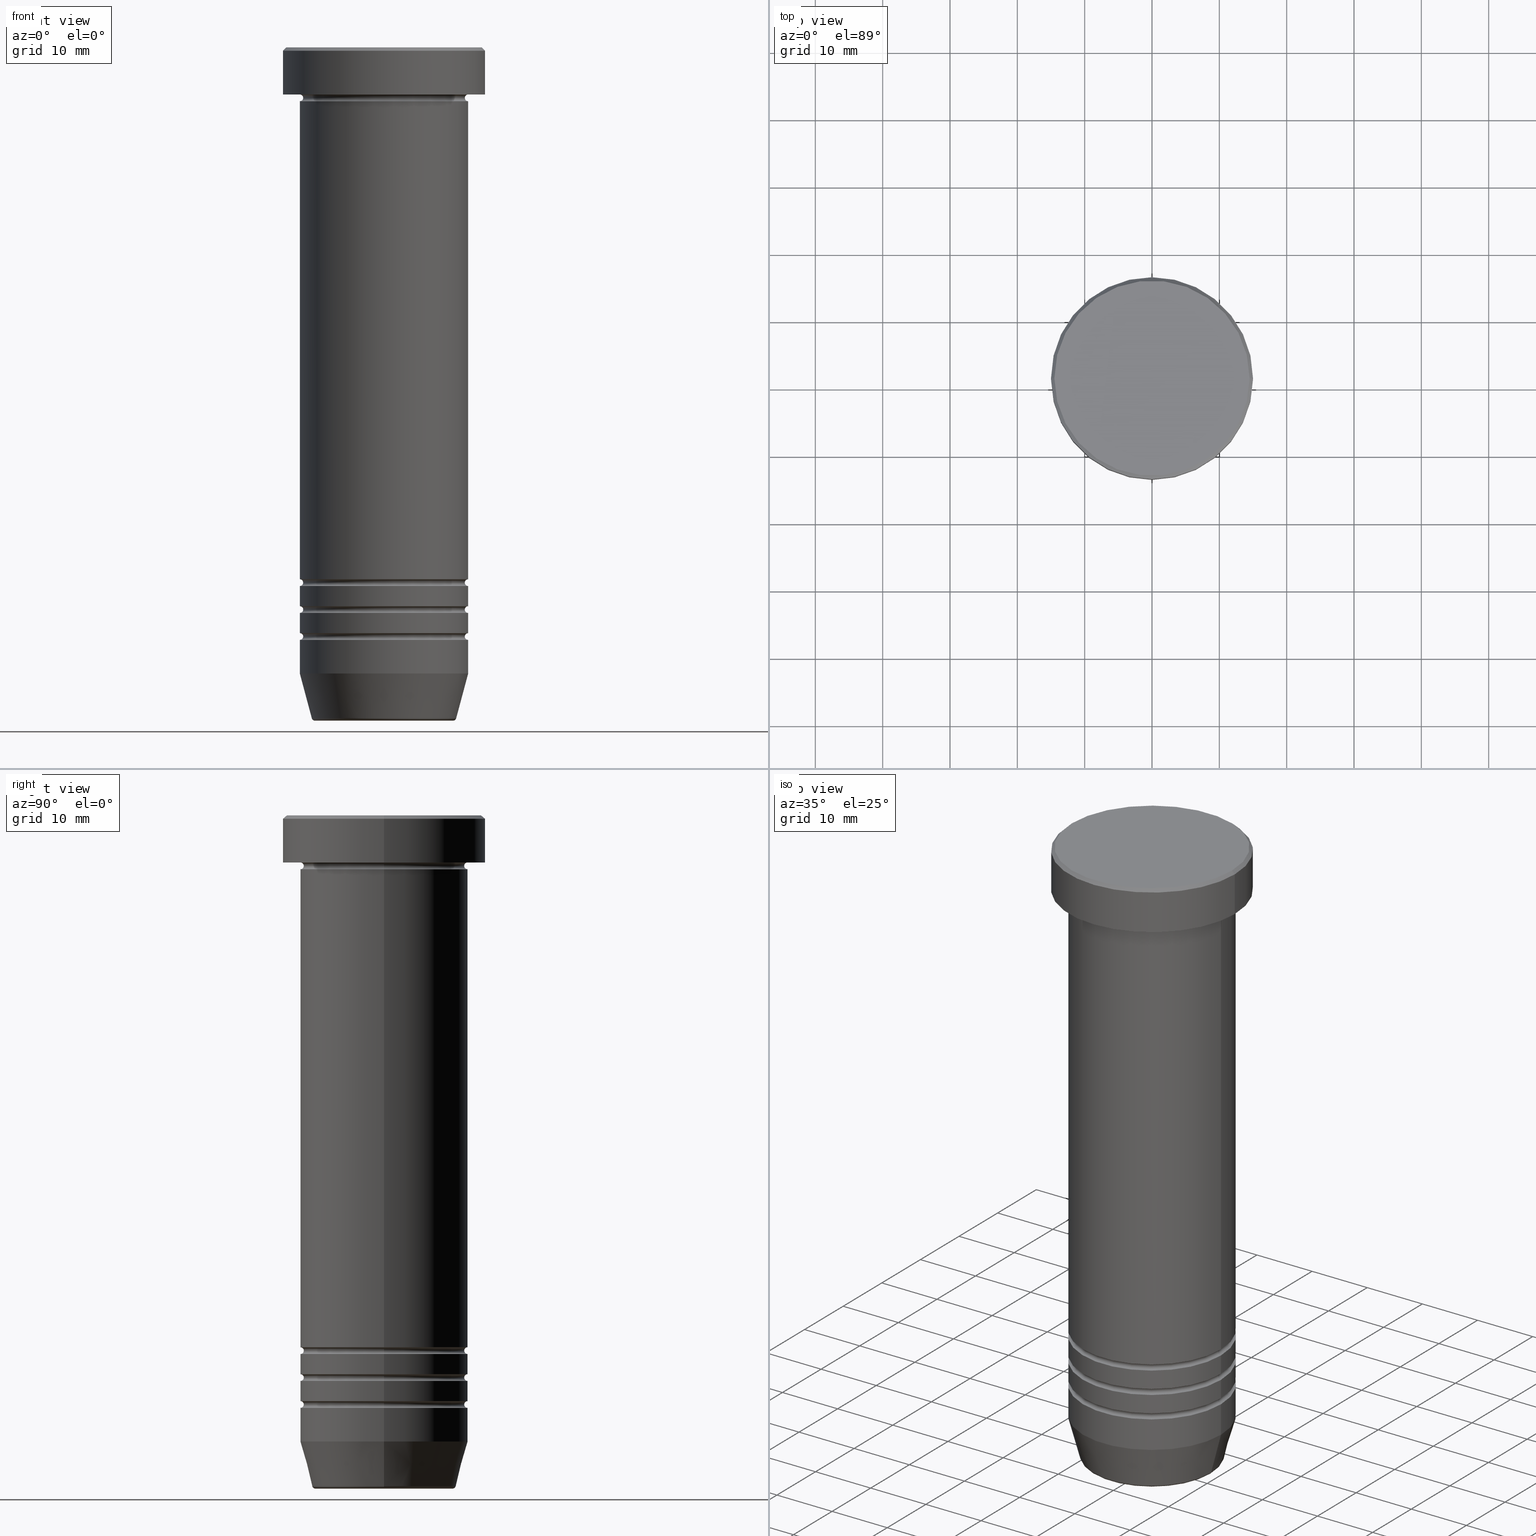
[diagram: canonical four-view strip — front | top / right | iso, engineering-drawing reading convention]
A machine part, canonical four-view strip (front | top / right | iso — engineering-drawing reading convention). The complete STEP part file that produces these views, byte-faithful:
ISO-10303-21;
HEADER;
FILE_DESCRIPTION (( 'STEP AP203' ),
    '1' );
FILE_NAME ('dcc9.STEP',
    '2024-01-02T20:27:09',
    ( '' ),
    ( '' ),
    'SwSTEP 2.0',
    'SolidWorks 2019',
    '' );
FILE_SCHEMA (( 'CONFIG_CONTROL_DESIGN' ));
ENDSEC;

DATA;
#1 = DIRECTION ( 'NONE',  ( 0.000000000000000000, 0.000000000000000000, 1.000000000000000000 ) ) ;
#2 = CARTESIAN_POINT ( 'NONE',  ( 15.00000000000000000, 0.000000000000000000, -0.5000000000000038858 ) ) ;
#3 = EDGE_CURVE ( 'NONE', #117, #323, #776, .T. ) ;
#4 = CARTESIAN_POINT ( 'NONE',  ( -11.99999999999999645, 1.500192328955507143E-15, -79.50000000000000000 ) ) ;
#5 = CARTESIAN_POINT ( 'NONE',  ( 0.000000000000000000, 0.000000000000000000, 0.000000000000000000 ) ) ;
#6 = CARTESIAN_POINT ( 'NONE',  ( 0.000000000000000000, 0.000000000000000000, -79.50000000000000000 ) ) ;
#7 = DIRECTION ( 'NONE',  ( 0.000000000000000000, 0.000000000000000000, -1.000000000000000000 ) ) ;
#8 = DIRECTION ( 'NONE',  ( 0.000000000000000000, 0.000000000000000000, -1.000000000000000000 ) ) ;
#9 = ORIENTED_EDGE ( 'NONE', *, *, #430, .T. ) ;
#10 = ADVANCED_FACE ( 'NONE', ( #821 ), #582, .T. ) ;
#11 = APPROVAL_STATUS ( 'not_yet_approved' ) ;
#12 = AXIS2_PLACEMENT_3D ( 'NONE', #476, #941, #225 ) ;
#13 = CONICAL_SURFACE ( 'NONE', #142, 14.49999999999999645, 0.7853981633974466137 ) ;
#14 = VECTOR ( 'NONE', #613, 1000.000000000000000 ) ;
#15 =( GEOMETRIC_REPRESENTATION_CONTEXT ( 3 ) GLOBAL_UNCERTAINTY_ASSIGNED_CONTEXT ( ( #703 ) ) GLOBAL_UNIT_ASSIGNED_CONTEXT ( ( #568, #888, #813 ) ) REPRESENTATION_CONTEXT ( 'NONE', 'WORKASPACE' ) );
#16 = CARTESIAN_POINT ( 'NONE',  ( -12.49999999999999645, 1.530808498934191127E-15, 0.000000000000000000 ) ) ;
#17 = EDGE_LOOP ( 'NONE', ( #222, #294, #981, #516 ) ) ;
#18 = ORIENTED_EDGE ( 'NONE', *, *, #109, .T. ) ;
#19 = DIRECTION ( 'NONE',  ( -0.000000000000000000, -0.000000000000000000, 1.000000000000000000 ) ) ;
#20 = ADVANCED_FACE ( 'NONE', ( #587 ), #97, .F. ) ;
#21 = CARTESIAN_POINT ( 'NONE',  ( 0.000000000000000000, 0.000000000000000000, -0.5000000000000038858 ) ) ;
#22 = CARTESIAN_POINT ( 'NONE',  ( 12.49999999999999289, 0.000000000000000000, -87.00000000000000000 ) ) ;
#23 = ORIENTED_EDGE ( 'NONE', *, *, #418, .F. ) ;
#24 = VERTEX_POINT ( 'NONE', #1002 ) ;
#25 = CARTESIAN_POINT ( 'NONE',  ( -11.99999999999999645, 1.500192328955507143E-15, -87.50000000000000000 ) ) ;
#26 = ADVANCED_FACE ( 'NONE', ( #589 ), #172, .T. ) ;
#27 = EDGE_LOOP ( 'NONE', ( #205, #684, #841, #224 ) ) ;
#28 = ORIENTED_EDGE ( 'NONE', *, *, #258, .F. ) ;
#29 = CARTESIAN_POINT ( 'NONE',  ( 12.50000000000000000, 0.000000000000000000, -25.00000000000000000 ) ) ;
#30 = CIRCLE ( 'NONE', #228, 0.5000000000000004441 ) ;
#31 = FACE_OUTER_BOUND ( 'NONE', #259, .T. ) ;
#32 = AXIS2_PLACEMENT_3D ( 'NONE', #522, #679, #689 ) ;
#33 = ORIENTED_EDGE ( 'NONE', *, *, #537, .F. ) ;
#34 = TOROIDAL_SURFACE ( 'NONE', #631, 12.49999999999999645, 0.5000000000000000000 ) ;
#35 = ORIENTED_EDGE ( 'NONE', *, *, #1017, .T. ) ;
#36 = DIRECTION ( 'NONE',  ( 1.000000000000000000, 0.000000000000000000, 0.000000000000000000 ) ) ;
#37 = CARTESIAN_POINT ( 'NONE',  ( 0.000000000000000000, 0.000000000000000000, -99.99999999999998579 ) ) ;
#38 = EDGE_CURVE ( 'NONE', #44, #274, #814, .T. ) ;
#39 = LINE ( 'NONE', #59, #14 ) ;
#40 = DIRECTION ( 'NONE',  ( -0.000000000000000000, -0.000000000000000000, 1.000000000000000000 ) ) ;
#41 = EDGE_LOOP ( 'NONE', ( #617, #722, #186, #378 ) ) ;
#42 = CARTESIAN_POINT ( 'NONE',  ( 0.000000000000000000, 0.000000000000000000, 0.000000000000000000 ) ) ;
#43 = CIRCLE ( 'NONE', #296, 15.00000000000000000 ) ;
#44 = VERTEX_POINT ( 'NONE', #85 ) ;
#45 = CIRCLE ( 'NONE', #526, 0.5000000000000004441 ) ;
#46 = CIRCLE ( 'NONE', #143, 12.50000000000000000 ) ;
#47 = CIRCLE ( 'NONE', #798, 12.49999999999999289 ) ;
#48 = EDGE_CURVE ( 'NONE', #478, #750, #920, .T. ) ;
#49 = CARTESIAN_POINT ( 'NONE',  ( 0.000000000000000000, 0.000000000000000000, -79.50000000000000000 ) ) ;
#50 = ORIENTED_EDGE ( 'NONE', *, *, #759, .F. ) ;
#51 = VERTEX_POINT ( 'NONE', #341 ) ;
#52 = CARTESIAN_POINT ( 'NONE',  ( 0.000000000000000000, 0.000000000000000000, -7.500000000000000000 ) ) ;
#53 = EDGE_LOOP ( 'NONE', ( #1009, #799, #458, #179 ) ) ;
#54 = CARTESIAN_POINT ( 'NONE',  ( 0.000000000000000000, 0.000000000000000000, -87.50000000000000000 ) ) ;
#55 = VECTOR ( 'NONE', #945, 1000.000000000000000 ) ;
#56 = ORIENTED_EDGE ( 'NONE', *, *, #548, .T. ) ;
#57 = CIRCLE ( 'NONE', #1055, 12.49999999999999822 ) ;
#58 = TOROIDAL_SURFACE ( 'NONE', #647, 12.49999999999999645, 0.5000000000000000000 ) ;
#59 = CARTESIAN_POINT ( 'NONE',  ( -12.49999999999999645, 1.530808498934191127E-15, 0.000000000000000000 ) ) ;
#60 = ORIENTED_EDGE ( 'NONE', *, *, #892, .F. ) ;
#61 = DIRECTION ( 'NONE',  ( -1.000000000000000000, 0.000000000000000000, 0.000000000000000000 ) ) ;
#62 = ADVANCED_FACE ( 'NONE', ( #337 ), #247, .T. ) ;
#63 = CARTESIAN_POINT ( 'NONE',  ( -10.24069215899265828, 1.254123087356375833E-15, -99.49999999999998579 ) ) ;
#64 = ORIENTED_EDGE ( 'NONE', *, *, #364, .T. ) ;
#65 = CARTESIAN_POINT ( 'NONE',  ( -12.50000000000000000, 1.530808498934191521E-15, -25.00000000000000000 ) ) ;
#66 = DIRECTION ( 'NONE',  ( 0.000000000000000000, 0.000000000000000000, -1.000000000000000000 ) ) ;
#67 = CARTESIAN_POINT ( 'NONE',  ( 0.000000000000000000, 0.000000000000000000, 0.000000000000000000 ) ) ;
#68 = VERTEX_POINT ( 'NONE', #25 ) ;
#69 = AXIS2_PLACEMENT_3D ( 'NONE', #305, #203, #352 ) ;
#70 = CARTESIAN_POINT ( 'NONE',  ( 0.000000000000000000, 6.123233995736764507E-15, -99.99999999999998579 ) ) ;
#71 = AXIS2_PLACEMENT_3D ( 'NONE', #737, #8, #728 ) ;
#72 = CIRCLE ( 'NONE', #969, 0.5000000000000004441 ) ;
#73 = CC_DESIGN_APPROVAL ( #580, ( #764 ) ) ;
#74 = ORIENTED_EDGE ( 'NONE', *, *, #48, .F. ) ;
#75 = EDGE_CURVE ( 'NONE', #938, #898, #123, .T. ) ;
#76 = ORIENTED_EDGE ( 'NONE', *, *, #38, .F. ) ;
#77 = DIRECTION ( 'NONE',  ( -1.000000000000000000, 0.000000000000000000, 0.000000000000000000 ) ) ;
#78 = CARTESIAN_POINT ( 'NONE',  ( 0.000000000000000000, 0.000000000000000000, 0.000000000000000000 ) ) ;
#79 = DIRECTION ( 'NONE',  ( 0.000000000000000000, 0.000000000000000000, -1.000000000000000000 ) ) ;
#80 = ORIENTED_EDGE ( 'NONE', *, *, #156, .F. ) ;
#81 = ADVANCED_FACE ( 'NONE', ( #928, #843 ), #100, .T. ) ;
#82 = DIRECTION ( 'NONE',  ( -1.000000000000000000, 0.000000000000000000, 0.000000000000000000 ) ) ;
#83 = DIRECTION ( 'NONE',  ( -0.000000000000000000, -0.000000000000000000, 1.000000000000000000 ) ) ;
#84 = DIRECTION ( 'NONE',  ( 0.000000000000000000, 0.000000000000000000, -1.000000000000000000 ) ) ;
#85 = CARTESIAN_POINT ( 'NONE',  ( -12.49999999999999289, 1.530808498934190930E-15, -79.00000000000000000 ) ) ;
#86 = CYLINDRICAL_SURFACE ( 'NONE', #854, 12.49999999999999645 ) ;
#87 = VERTEX_POINT ( 'NONE', #244 ) ;
#88 = PERSON_AND_ORGANIZATION ( #998, #128 ) ;
#89 = AXIS2_PLACEMENT_3D ( 'NONE', #360, #934, #859 ) ;
#90 = AXIS2_PLACEMENT_3D ( 'NONE', #982, #248, #319 ) ;
#91 = CIRCLE ( 'NONE', #300, 12.50000000000000000 ) ;
#92 = DIRECTION ( 'NONE',  ( 1.000000000000000000, 0.000000000000000000, 0.000000000000000000 ) ) ;
#93 = DIRECTION ( 'NONE',  ( 1.000000000000000000, 0.000000000000000000, 0.000000000000000000 ) ) ;
#94 = ORIENTED_EDGE ( 'NONE', *, *, #691, .F. ) ;
#95 = PERSON_AND_ORGANIZATION_ROLE ( 'design_supplier' ) ;
#96 = EDGE_CURVE ( 'NONE', #488, #274, #724, .T. ) ;
#97 = PLANE ( 'NONE',  #1037 ) ;
#98 = CARTESIAN_POINT ( 'NONE',  ( 12.50000000000000000, 1.530808498934191521E-15, -6.999999999999999112 ) ) ;
#99 = EDGE_LOOP ( 'NONE', ( #995, #673, #428, #840 ) ) ;
#100 = PLANE ( 'NONE',  #468 ) ;
#101 = DIRECTION ( 'NONE',  ( 0.000000000000000000, 0.000000000000000000, -1.000000000000000000 ) ) ;
#102 = EDGE_LOOP ( 'NONE', ( #665, #311, #303, #397 ) ) ;
#103 = CALENDAR_DATE ( 2024, 2, 1 ) ;
#104 = CARTESIAN_POINT ( 'NONE',  ( 0.000000000000000000, 0.000000000000000000, 0.000000000000000000 ) ) ;
#105 = DIRECTION ( 'NONE',  ( 1.000000000000000000, 0.000000000000000000, 0.000000000000000000 ) ) ;
#106 = AXIS2_PLACEMENT_3D ( 'NONE', #657, #422, #661 ) ;
#107 = AXIS2_PLACEMENT_3D ( 'NONE', #309, #564, #893 ) ;
#108 = ORIENTED_EDGE ( 'NONE', *, *, #418, .T. ) ;
#109 = EDGE_CURVE ( 'NONE', #783, #584, #196, .T. ) ;
#110 = CIRCLE ( 'NONE', #666, 0.5000000000000004441 ) ;
#111 = LOCAL_TIME ( 21, 27, 9.000000000000000000, #260 ) ;
#112 = CARTESIAN_POINT ( 'NONE',  ( 14.49999999999999645, 1.806354028742345802E-15, 0.000000000000000000 ) ) ;
#113 = EDGE_LOOP ( 'NONE', ( #603, #438, #1012, #158 ) ) ;
#114 = CC_DESIGN_PERSON_AND_ORGANIZATION_ASSIGNMENT ( #326, #718, ( #552 ) ) ;
#115 = DIRECTION ( 'NONE',  ( 1.000000000000000000, 0.000000000000000000, 0.000000000000000000 ) ) ;
#116 = CARTESIAN_POINT ( 'NONE',  ( 11.99999999999999645, 0.000000000000000000, -87.50000000000000000 ) ) ;
#117 = VERTEX_POINT ( 'NONE', #736 ) ;
#118 = EDGE_CURVE ( 'NONE', #505, #715, #30, .T. ) ;
#119 = DESIGN_CONTEXT ( 'detailed design', #961, 'design' ) ;
#120 = CARTESIAN_POINT ( 'NONE',  ( 0.000000000000000000, 0.000000000000000000, -79.50000000000000000 ) ) ;
#121 = DIRECTION ( 'NONE',  ( -0.000000000000000000, -0.000000000000000000, 1.000000000000000000 ) ) ;
#122 = PLANE ( 'NONE',  #871 ) ;
#123 = CIRCLE ( 'NONE', #434, 12.50000000000000000 ) ;
#124 = EDGE_LOOP ( 'NONE', ( #532, #792, #690, #999 ) ) ;
#125 = CIRCLE ( 'NONE', #559, 0.5000000000000004441 ) ;
#126 = CARTESIAN_POINT ( 'NONE',  ( 11.99999999999999645, 0.000000000000000000, -79.50000000000000000 ) ) ;
#127 = AXIS2_PLACEMENT_3D ( 'NONE', #6, #897, #165 ) ;
#128 = ORGANIZATION ( 'NEUR�EN�', 'NEUR�EN�', '' ) ;
#129 = CARTESIAN_POINT ( 'NONE',  ( 12.49999999999999645, 1.530808498934191127E-15, -79.50000000000000000 ) ) ;
#130 = EDGE_CURVE ( 'NONE', #966, #750, #619, .T. ) ;
#131 = FACE_OUTER_BOUND ( 'NONE', #658, .T. ) ;
#132 = ORIENTED_EDGE ( 'NONE', *, *, #883, .T. ) ;
#133 = ORIENTED_EDGE ( 'NONE', *, *, #842, .F. ) ;
#134 = DIRECTION ( 'NONE',  ( 0.000000000000000000, 0.000000000000000000, -1.000000000000000000 ) ) ;
#135 = EDGE_CURVE ( 'NONE', #811, #524, #662, .T. ) ;
#136 = CYLINDRICAL_SURFACE ( 'NONE', #368, 15.00000000000000000 ) ;
#137 = EDGE_LOOP ( 'NONE', ( #462, #685, #273, #80 ) ) ;
#138 = CARTESIAN_POINT ( 'NONE',  ( 0.000000000000000000, 0.000000000000000000, -87.50000000000000000 ) ) ;
#139 = AXIS2_PLACEMENT_3D ( 'NONE', #929, #193, #105 ) ;
#140 = ORIENTED_EDGE ( 'NONE', *, *, #237, .T. ) ;
#141 = EDGE_CURVE ( 'NONE', #524, #811, #952, .T. ) ;
#142 = AXIS2_PLACEMENT_3D ( 'NONE', #901, #807, #61 ) ;
#143 = AXIS2_PLACEMENT_3D ( 'NONE', #235, #485, #157 ) ;
#144 = CIRCLE ( 'NONE', #547, 12.50000000000000000 ) ;
#145 = DIRECTION ( 'NONE',  ( 1.000000000000000000, 0.000000000000000000, 0.000000000000000000 ) ) ;
#146 = CARTESIAN_POINT ( 'NONE',  ( -12.50000000000000000, 1.530808498934191521E-15, -8.000000000000000000 ) ) ;
#147 = CARTESIAN_POINT ( 'NONE',  ( 12.49999999999999645, 0.000000000000000000, 0.000000000000000000 ) ) ;
#148 = ORIENTED_EDGE ( 'NONE', *, *, #726, .T. ) ;
#149 = EDGE_CURVE ( 'NONE', #44, #330, #362, .T. ) ;
#150 = LINE ( 'NONE', #654, #264 ) ;
#151 = CARTESIAN_POINT ( 'NONE',  ( 0.000000000000000000, 0.000000000000000000, -87.00000000000000000 ) ) ;
#152 = DIRECTION ( 'NONE',  ( -0.000000000000000000, -0.000000000000000000, 1.000000000000000000 ) ) ;
#153 = DIRECTION ( 'NONE',  ( -1.000000000000000000, 0.000000000000000000, 0.000000000000000000 ) ) ;
#154 = VERTEX_POINT ( 'NONE', #365 ) ;
#155 = FACE_OUTER_BOUND ( 'NONE', #99, .T. ) ;
#156 = EDGE_CURVE ( 'NONE', #286, #154, #263, .T. ) ;
#157 = DIRECTION ( 'NONE',  ( 1.000000000000000000, 0.000000000000000000, 0.000000000000000000 ) ) ;
#158 = ORIENTED_EDGE ( 'NONE', *, *, #141, .F. ) ;
#159 = LINE ( 'NONE', #816, #182 ) ;
#160 = ORIENTED_EDGE ( 'NONE', *, *, #660, .T. ) ;
#161 = CARTESIAN_POINT ( 'NONE',  ( 12.50000000000000000, 0.000000000000000000, 0.000000000000000000 ) ) ;
#162 = CIRCLE ( 'NONE', #762, 12.49999999999999289 ) ;
#163 = DIRECTION ( 'NONE',  ( 1.000000000000000000, 0.000000000000000000, 0.000000000000000000 ) ) ;
#164 = AXIS2_PLACEMENT_3D ( 'NONE', #459, #302, #219 ) ;
#165 = DIRECTION ( 'NONE',  ( 1.000000000000000000, 0.000000000000000000, 0.000000000000000000 ) ) ;
#166 = TOROIDAL_SURFACE ( 'NONE', #682, 12.50000000000000000, 0.5000000000000000000 ) ;
#167 = DIRECTION ( 'NONE',  ( 0.000000000000000000, 0.000000000000000000, -1.000000000000000000 ) ) ;
#168 = DIRECTION ( 'NONE',  ( 1.000000000000000000, 0.000000000000000000, 0.000000000000000000 ) ) ;
#169 = ORIENTED_EDGE ( 'NONE', *, *, #911, .F. ) ;
#170 = CARTESIAN_POINT ( 'NONE',  ( 0.000000000000000000, 0.000000000000000000, 0.000000000000000000 ) ) ;
#171 = APPLICATION_PROTOCOL_DEFINITION ( 'international standard', 'config_control_design', 1994, #961 ) ;
#172 = CYLINDRICAL_SURFACE ( 'NONE', #487, 12.50000000000000000 ) ;
#173 = VERTEX_POINT ( 'NONE', #29 ) ;
#174 = CALENDAR_DATE ( 2024, 2, 1 ) ;
#175 = DIRECTION ( 'NONE',  ( -1.000000000000000000, 1.224646799147353454E-16, 0.000000000000000000 ) ) ;
#176 = DIRECTION ( 'NONE',  ( -0.000000000000000000, -1.000000000000000000, -0.000000000000000000 ) ) ;
#177 = ORIENTED_EDGE ( 'NONE', *, *, #149, .F. ) ;
#178 = EDGE_CURVE ( 'NONE', #268, #715, #271, .T. ) ;
#179 = ORIENTED_EDGE ( 'NONE', *, *, #379, .F. ) ;
#180 = PERSON_AND_ORGANIZATION_ROLE ( 'creator' ) ;
#181 = AXIS2_PLACEMENT_3D ( 'NONE', #504, #910, #92 ) ;
#182 = VECTOR ( 'NONE', #980, 1000.000000000000000 ) ;
#183 = CARTESIAN_POINT ( 'NONE',  ( -12.49999999999999645, 1.530808498934191127E-15, -87.50000000000000000 ) ) ;
#184 = AXIS2_PLACEMENT_3D ( 'NONE', #78, #152, #985 ) ;
#185 = AXIS2_PLACEMENT_3D ( 'NONE', #1033, #875, #1016 ) ;
#186 = ORIENTED_EDGE ( 'NONE', *, *, #96, .T. ) ;
#187 = ORIENTED_EDGE ( 'NONE', *, *, #615, .T. ) ;
#188 = ADVANCED_FACE ( 'NONE', ( #388 ), #870, .F. ) ;
#189 = PERSON_AND_ORGANIZATION ( #998, #128 ) ;
#190 = ADVANCED_FACE ( 'NONE', ( #636 ), #683, .T. ) ;
#191 = DIRECTION ( 'NONE',  ( 1.000000000000000000, 0.000000000000000000, 0.000000000000000000 ) ) ;
#192 = ADVANCED_FACE ( 'NONE', ( #602 ), #696, .T. ) ;
#193 = DIRECTION ( 'NONE',  ( -0.000000000000000000, -0.000000000000000000, 1.000000000000000000 ) ) ;
#194 = FACE_OUTER_BOUND ( 'NONE', #102, .T. ) ;
#195 = VERTEX_POINT ( 'NONE', #1010 ) ;
#196 = CIRCLE ( 'NONE', #557, 11.99999999999999645 ) ;
#197 = VECTOR ( 'NONE', #1058, 1000.000000000000000 ) ;
#198 = VECTOR ( 'NONE', #1045, 1000.000000000000000 ) ;
#199 = EDGE_LOOP ( 'NONE', ( #917, #550, #931, #732 ) ) ;
#200 = AXIS2_PLACEMENT_3D ( 'NONE', #380, #1023, #115 ) ;
#201 = AXIS2_PLACEMENT_3D ( 'NONE', #1029, #865, #956 ) ;
#202 = DIRECTION ( 'NONE',  ( -1.224646799147353207E-16, 1.000000000000000000, 0.000000000000000000 ) ) ;
#203 = DIRECTION ( 'NONE',  ( -0.000000000000000000, -0.000000000000000000, 1.000000000000000000 ) ) ;
#204 = CARTESIAN_POINT ( 'NONE',  ( 0.000000000000000000, 0.000000000000000000, -99.49999999999998579 ) ) ;
#205 = ORIENTED_EDGE ( 'NONE', *, *, #206, .T. ) ;
#206 = EDGE_CURVE ( 'NONE', #562, #51, #506, .T. ) ;
#207 = DIRECTION ( 'NONE',  ( 1.000000000000000000, 0.000000000000000000, 0.000000000000000000 ) ) ;
#208 = DIRECTION ( 'NONE',  ( 1.000000000000000000, 0.000000000000000000, 0.000000000000000000 ) ) ;
#209 = EDGE_LOOP ( 'NONE', ( #768, #610, #332, #788 ) ) ;
#210 = EDGE_CURVE ( 'NONE', #817, #488, #852, .T. ) ;
#211 = FACE_OUTER_BOUND ( 'NONE', #113, .T. ) ;
#212 = ORIENTED_EDGE ( 'NONE', *, *, #1060, .T. ) ;
#213 = AXIS2_PLACEMENT_3D ( 'NONE', #272, #848, #267 ) ;
#214 = FACE_OUTER_BOUND ( 'NONE', #27, .T. ) ;
#215 = TOROIDAL_SURFACE ( 'NONE', #386, 12.49999999999999645, 0.5000000000000000000 ) ;
#216 = LOCAL_TIME ( 21, 27, 9.000000000000000000, #1000 ) ;
#217 = CARTESIAN_POINT ( 'NONE',  ( 0.000000000000000000, 0.000000000000000000, -99.99999999999998579 ) ) ;
#218 = DIRECTION ( 'NONE',  ( -1.000000000000000000, 0.000000000000000000, 0.000000000000000000 ) ) ;
#219 = DIRECTION ( 'NONE',  ( 1.000000000000000000, 0.000000000000000000, 0.000000000000000000 ) ) ;
#220 = ADVANCED_FACE ( 'NONE', ( #766 ), #246, .F. ) ;
#221 = CARTESIAN_POINT ( 'NONE',  ( 0.000000000000000000, 0.000000000000000000, -87.50000000000000000 ) ) ;
#222 = ORIENTED_EDGE ( 'NONE', *, *, #789, .F. ) ;
#223 = CARTESIAN_POINT ( 'NONE',  ( 12.49999999999999645, 0.000000000000000000, -87.50000000000000000 ) ) ;
#224 = ORIENTED_EDGE ( 'NONE', *, *, #601, .F. ) ;
#225 = DIRECTION ( 'NONE',  ( -1.000000000000000000, 0.000000000000000000, 0.000000000000000000 ) ) ;
#226 = CARTESIAN_POINT ( 'NONE',  ( 0.000000000000000000, 0.000000000000000000, -87.50000000000000000 ) ) ;
#227 = CC_DESIGN_PERSON_AND_ORGANIZATION_ASSIGNMENT ( #828, #180, ( #992 ) ) ;
#228 = AXIS2_PLACEMENT_3D ( 'NONE', #328, #987, #825 ) ;
#229 = ORIENTED_EDGE ( 'NONE', *, *, #465, .T. ) ;
#230 = AXIS2_PLACEMENT_3D ( 'NONE', #790, #481, #740 ) ;
#231 = VECTOR ( 'NONE', #469, 1000.000000000000000 ) ;
#232 = CARTESIAN_POINT ( 'NONE',  ( 12.49999999999999645, 0.000000000000000000, 0.000000000000000000 ) ) ;
#233 = AXIS2_PLACEMENT_3D ( 'NONE', #642, #1, #145 ) ;
#234 = DIRECTION ( 'NONE',  ( 1.000000000000000000, 0.000000000000000000, 0.000000000000000000 ) ) ;
#235 = CARTESIAN_POINT ( 'NONE',  ( 0.000000000000000000, 0.000000000000000000, -8.000000000000000000 ) ) ;
#236 = ORIENTED_EDGE ( 'NONE', *, *, #135, .F. ) ;
#237 = EDGE_CURVE ( 'NONE', #966, #772, #43, .T. ) ;
#238 = FACE_OUTER_BOUND ( 'NONE', #863, .T. ) ;
#239 = CARTESIAN_POINT ( 'NONE',  ( 0.000000000000000000, 0.000000000000000000, -7.500000000000000000 ) ) ;
#240 = LINE ( 'NONE', #16, #197 ) ;
#241 = ORIENTED_EDGE ( 'NONE', *, *, #983, .F. ) ;
#242 = CARTESIAN_POINT ( 'NONE',  ( -10.24069215899265828, 1.283696036640842573E-15, -99.99999999999998579 ) ) ;
#243 = DIRECTION ( 'NONE',  ( -0.000000000000000000, -0.000000000000000000, 1.000000000000000000 ) ) ;
#244 = CARTESIAN_POINT ( 'NONE',  ( -12.50000000000000000, 1.530808498934191521E-15, -25.00000000000000000 ) ) ;
#245 = CARTESIAN_POINT ( 'NONE',  ( -14.49999999999999645, 0.000000000000000000, 0.000000000000000000 ) ) ;
#246 = TOROIDAL_SURFACE ( 'NONE', #708, 12.50000000000000000, 0.5000000000000000000 ) ;
#247 = TOROIDAL_SURFACE ( 'NONE', #902, 10.24069215899265828, 0.5000000000000000000 ) ;
#248 = DIRECTION ( 'NONE',  ( 0.000000000000000000, -1.000000000000000000, 0.000000000000000000 ) ) ;
#249 = AXIS2_PLACEMENT_3D ( 'NONE', #479, #395, #723 ) ;
#250 = VECTOR ( 'NONE', #243, 1000.000000000000000 ) ;
#251 = CARTESIAN_POINT ( 'NONE',  ( -11.99999999999999645, 1.500192328955507537E-15, -83.49999999999998579 ) ) ;
#252 = CIRCLE ( 'NONE', #185, 15.00000000000000000 ) ;
#253 = DIRECTION ( 'NONE',  ( -0.000000000000000000, -1.000000000000000000, -0.000000000000000000 ) ) ;
#254 = CARTESIAN_POINT ( 'NONE',  ( 0.000000000000000000, 0.000000000000000000, 0.000000000000000000 ) ) ;
#255 = ORIENTED_EDGE ( 'NONE', *, *, #48, .T. ) ;
#256 = ORIENTED_EDGE ( 'NONE', *, *, #335, .T. ) ;
#257 = DIRECTION ( 'NONE',  ( 1.000000000000000000, 0.000000000000000000, 0.000000000000000000 ) ) ;
#258 = EDGE_CURVE ( 'NONE', #24, #51, #572, .T. ) ;
#259 = EDGE_LOOP ( 'NONE', ( #443, #35 ) ) ;
#260 = COORDINATED_UNIVERSAL_TIME_OFFSET ( 1, 0, .AHEAD. ) ;
#261 = CARTESIAN_POINT ( 'NONE',  ( 0.000000000000000000, 0.000000000000000000, -25.00000000000000000 ) ) ;
#262 = PERSON_AND_ORGANIZATION ( #998, #128 ) ;
#263 = CIRCLE ( 'NONE', #12, 10.72365507213718772 ) ;
#264 = VECTOR ( 'NONE', #977, 1000.000000000000000 ) ;
#265 = AXIS2_PLACEMENT_3D ( 'NONE', #390, #882, #787 ) ;
#266 = CC_DESIGN_SECURITY_CLASSIFICATION ( #764, ( #924 ) ) ;
#267 = DIRECTION ( 'NONE',  ( 1.000000000000000000, 0.000000000000000000, 0.000000000000000000 ) ) ;
#268 = VERTEX_POINT ( 'NONE', #65 ) ;
#269 = EDGE_CURVE ( 'NONE', #585, #482, #415, .T. ) ;
#270 = DATE_TIME_ROLE ( 'creation_date' ) ;
#271 = LINE ( 'NONE', #441, #331 ) ;
#272 = CARTESIAN_POINT ( 'NONE',  ( 0.000000000000000000, 0.000000000000000000, -99.99999999999998579 ) ) ;
#273 = ORIENTED_EDGE ( 'NONE', *, *, #713, .T. ) ;
#274 = VERTEX_POINT ( 'NONE', #4 ) ;
#275 = DIRECTION ( 'NONE',  ( 1.000000000000000000, 0.000000000000000000, 0.000000000000000000 ) ) ;
#276 = DATE_AND_TIME ( #174, #614 ) ;
#277 = ADVANCED_FACE ( 'NONE', ( #155 ), #13, .T. ) ;
#278 = CARTESIAN_POINT ( 'NONE',  ( 0.000000000000000000, 0.000000000000000000, -83.49999999999998579 ) ) ;
#279 = CARTESIAN_POINT ( 'NONE',  ( 11.99999999999999645, 0.000000000000000000, -83.49999999999998579 ) ) ;
#280 = EDGE_LOOP ( 'NONE', ( #885, #466, #169, #448 ) ) ;
#281 = CARTESIAN_POINT ( 'NONE',  ( 0.000000000000000000, 0.000000000000000000, -8.000000000000000000 ) ) ;
#282 = CARTESIAN_POINT ( 'NONE',  ( 0.000000000000000000, 0.000000000000000000, -6.999999999999999112 ) ) ;
#283 = AXIS2_PLACEMENT_3D ( 'NONE', #204, #771, #860 ) ;
#284 = CARTESIAN_POINT ( 'NONE',  ( 0.000000000000000000, 0.000000000000000000, -99.99999999999998579 ) ) ;
#285 = VECTOR ( 'NONE', #393, 1000.000000000000000 ) ;
#286 = VERTEX_POINT ( 'NONE', #824 ) ;
#287 = APPROVAL_PERSON_ORGANIZATION ( #262, #355, #596 ) ;
#288 = ORIENTED_EDGE ( 'NONE', *, *, #75, .F. ) ;
#289 = CARTESIAN_POINT ( 'NONE',  ( 0.000000000000000000, 0.000000000000000000, 0.000000000000000000 ) ) ;
#290 = DIRECTION ( 'NONE',  ( 1.000000000000000000, 0.000000000000000000, 0.000000000000000000 ) ) ;
#291 = ADVANCED_FACE ( 'NONE', ( #908 ), #525, .F. ) ;
#292 = DIRECTION ( 'NONE',  ( -0.000000000000000000, -0.000000000000000000, 1.000000000000000000 ) ) ;
#293 = CARTESIAN_POINT ( 'NONE',  ( 12.50000000000000000, 0.000000000000000000, 0.000000000000000000 ) ) ;
#294 = ORIENTED_EDGE ( 'NONE', *, *, #653, .T. ) ;
#295 = DIRECTION ( 'NONE',  ( 1.000000000000000000, 0.000000000000000000, 0.000000000000000000 ) ) ;
#296 = AXIS2_PLACEMENT_3D ( 'NONE', #357, #641, #497 ) ;
#297 = EDGE_LOOP ( 'NONE', ( #241, #826, #520, #972 ) ) ;
#298 = CONICAL_SURFACE ( 'NONE', #333, 14.49999999999999645, 0.7853981633974466137 ) ;
#299 = DIRECTION ( 'NONE',  ( 0.000000000000000000, 0.000000000000000000, -1.000000000000000000 ) ) ;
#300 = AXIS2_PLACEMENT_3D ( 'NONE', #1041, #376, #549 ) ;
#301 = ADVANCED_FACE ( 'NONE', ( #238 ), #298, .T. ) ;
#302 = DIRECTION ( 'NONE',  ( 0.000000000000000000, 0.000000000000000000, -1.000000000000000000 ) ) ;
#303 = ORIENTED_EDGE ( 'NONE', *, *, #954, .F. ) ;
#304 = ORIENTED_EDGE ( 'NONE', *, *, #269, .T. ) ;
#305 = CARTESIAN_POINT ( 'NONE',  ( 0.000000000000000000, 0.000000000000000000, 0.000000000000000000 ) ) ;
#306 = EDGE_CURVE ( 'NONE', #938, #783, #125, .T. ) ;
#307 = LINE ( 'NONE', #293, #855 ) ;
#308 = ORIENTED_EDGE ( 'NONE', *, *, #943, .T. ) ;
#309 = CARTESIAN_POINT ( 'NONE',  ( 0.000000000000000000, 0.000000000000000000, -25.00000000000000000 ) ) ;
#310 = EDGE_CURVE ( 'NONE', #330, #173, #803, .T. ) ;
#311 = ORIENTED_EDGE ( 'NONE', *, *, #178, .T. ) ;
#312 = AXIS2_PLACEMENT_3D ( 'NONE', #138, #473, #800 ) ;
#313 = AXIS2_PLACEMENT_3D ( 'NONE', #261, #19, #513 ) ;
#314 = DIRECTION ( 'NONE',  ( -1.000000000000000000, 0.000000000000000000, 0.000000000000000000 ) ) ;
#315 = DIRECTION ( 'NONE',  ( 0.7071067811865463515, 8.659560562354918067E-17, -0.7071067811865487940 ) ) ;
#316 = CARTESIAN_POINT ( 'NONE',  ( -15.00000000000000000, 1.836970198721029589E-15, 0.000000000000000000 ) ) ;
#317 = FACE_OUTER_BOUND ( 'NONE', #625, .T. ) ;
#318 = EDGE_LOOP ( 'NONE', ( #571, #1048, #716, #806 ) ) ;
#319 = DIRECTION ( 'NONE',  ( 0.000000000000000000, 0.000000000000000000, -1.000000000000000000 ) ) ;
#320 = APPLICATION_PROTOCOL_DEFINITION ( 'international standard', 'config_control_design', 1994, #944 ) ;
#321 = CARTESIAN_POINT ( 'NONE',  ( -12.49999999999999645, 1.530808498934191127E-15, -83.49999999999998579 ) ) ;
#322 = DIRECTION ( 'NONE',  ( 0.000000000000000000, 0.000000000000000000, -1.000000000000000000 ) ) ;
#323 = VERTEX_POINT ( 'NONE', #819 ) ;
#324 = CARTESIAN_POINT ( 'NONE',  ( 0.000000000000000000, 0.000000000000000000, -79.50000000000000000 ) ) ;
#325 = ADVANCED_FACE ( 'NONE', ( #717 ), #1049, .F. ) ;
#326 = PERSON_AND_ORGANIZATION ( #998, #128 ) ;
#327 = FACE_OUTER_BOUND ( 'NONE', #369, .T. ) ;
#328 = CARTESIAN_POINT ( 'NONE',  ( -12.50000000000000000, 1.530808498934191521E-15, -7.500000000000000000 ) ) ;
#329 = CARTESIAN_POINT ( 'NONE',  ( -15.00000000000000000, 1.836970198721029589E-15, -0.5000000000000038858 ) ) ;
#330 = VERTEX_POINT ( 'NONE', #1061 ) ;
#331 = VECTOR ( 'NONE', #886, 1000.000000000000000 ) ;
#332 = ORIENTED_EDGE ( 'NONE', *, *, #707, .F. ) ;
#333 = AXIS2_PLACEMENT_3D ( 'NONE', #170, #567, #77 ) ;
#334 = AXIS2_PLACEMENT_3D ( 'NONE', #752, #340, #424 ) ;
#335 = EDGE_CURVE ( 'NONE', #330, #394, #508, .T. ) ;
#336 = CARTESIAN_POINT ( 'NONE',  ( -12.50000000000000000, 1.530808498934191521E-15, 0.000000000000000000 ) ) ;
#337 = FACE_OUTER_BOUND ( 'NONE', #280, .T. ) ;
#338 = ORIENTED_EDGE ( 'NONE', *, *, #96, .F. ) ;
#339 = EDGE_CURVE ( 'NONE', #500, #478, #150, .T. ) ;
#340 = DIRECTION ( 'NONE',  ( -0.000000000000000000, -0.000000000000000000, 1.000000000000000000 ) ) ;
#341 = CARTESIAN_POINT ( 'NONE',  ( 12.50000000000000000, 0.000000000000000000, -88.00000000000000000 ) ) ;
#342 = VERTEX_POINT ( 'NONE', #242 ) ;
#343 = EDGE_LOOP ( 'NONE', ( #832, #648, #907, #742 ) ) ;
#344 = DIRECTION ( 'NONE',  ( -0.000000000000000000, -0.000000000000000000, 1.000000000000000000 ) ) ;
#345 = FACE_OUTER_BOUND ( 'NONE', #343, .T. ) ;
#346 = ORIENTED_EDGE ( 'NONE', *, *, #573, .T. ) ;
#347 = EDGE_CURVE ( 'NONE', #87, #173, #470, .T. ) ;
#348 = EDGE_LOOP ( 'NONE', ( #535, #599 ) ) ;
#349 = CALENDAR_DATE ( 2024, 2, 1 ) ;
#350 = CIRCLE ( 'NONE', #213, 10.24069215899265828 ) ;
#351 = CIRCLE ( 'NONE', #763, 12.00000000000000000 ) ;
#352 = DIRECTION ( 'NONE',  ( 1.000000000000000000, 0.000000000000000000, 0.000000000000000000 ) ) ;
#353 = CARTESIAN_POINT ( 'NONE',  ( 0.000000000000000000, 0.000000000000000000, 0.000000000000000000 ) ) ;
#354 = EDGE_LOOP ( 'NONE', ( #947, #132, #507, #672 ) ) ;
#355 = APPROVAL ( #604, 'NEUR�EN�' ) ;
#356 = APPROVAL_DATE_TIME ( #918, #355 ) ;
#357 = CARTESIAN_POINT ( 'NONE',  ( 0.000000000000000000, 0.000000000000000000, -6.999999999999998224 ) ) ;
#358 = CARTESIAN_POINT ( 'NONE',  ( -12.50000000000000000, 1.530808498934191521E-15, -88.00000000000000000 ) ) ;
#359 = ORIENTED_EDGE ( 'NONE', *, *, #444, .T. ) ;
#360 = CARTESIAN_POINT ( 'NONE',  ( 0.000000000000000000, 0.000000000000000000, -6.999999999999999112 ) ) ;
#361 = DIRECTION ( 'NONE',  ( -0.000000000000000000, -0.000000000000000000, 1.000000000000000000 ) ) ;
#362 = CIRCLE ( 'NONE', #935, 12.49999999999999289 ) ;
#363 = DIRECTION ( 'NONE',  ( 1.000000000000000000, 0.000000000000000000, 0.000000000000000000 ) ) ;
#364 = EDGE_CURVE ( 'NONE', #898, #938, #664, .T. ) ;
#365 = CARTESIAN_POINT ( 'NONE',  ( 10.72365507213718772, 0.000000000000000000, -99.62940952255125637 ) ) ;
#366 = AXIS2_PLACEMENT_3D ( 'NONE', #284, #930, #1018 ) ;
#367 = DIRECTION ( 'NONE',  ( -0.000000000000000000, -0.000000000000000000, 1.000000000000000000 ) ) ;
#368 = AXIS2_PLACEMENT_3D ( 'NONE', #42, #964, #295 ) ;
#369 = EDGE_LOOP ( 'NONE', ( #668, #187, #640, #496 ) ) ;
#370 = AXIS2_PLACEMENT_3D ( 'NONE', #5, #909, #808 ) ;
#371 = ADVANCED_BREP_SHAPE_REPRESENTATION ( 'dcc9', ( #851, #837, #233 ), #15 ) ;
#372 = DIRECTION ( 'NONE',  ( 1.000000000000000000, 0.000000000000000000, 0.000000000000000000 ) ) ;
#373 = DIRECTION ( 'NONE',  ( -1.000000000000000000, -1.224646799147353454E-16, 0.000000000000000000 ) ) ;
#374 = EDGE_LOOP ( 'NONE', ( #576, #1046, #699, #28 ) ) ;
#375 = DIRECTION ( 'NONE',  ( -0.000000000000000000, -0.000000000000000000, 1.000000000000000000 ) ) ;
#376 = DIRECTION ( 'NONE',  ( -0.000000000000000000, -0.000000000000000000, 1.000000000000000000 ) ) ;
#377 = VERTEX_POINT ( 'NONE', #551 ) ;
#378 = ORIENTED_EDGE ( 'NONE', *, *, #903, .T. ) ;
#379 = EDGE_CURVE ( 'NONE', #585, #701, #984, .T. ) ;
#380 = CARTESIAN_POINT ( 'NONE',  ( 0.000000000000000000, 0.000000000000000000, 0.000000000000000000 ) ) ;
#381 = AXIS2_PLACEMENT_3D ( 'NONE', #651, #1053, #812 ) ;
#382 = DIRECTION ( 'NONE',  ( -1.000000000000000000, 0.000000000000000000, -0.000000000000000000 ) ) ;
#383 = AXIS2_PLACEMENT_3D ( 'NONE', #54, #299, #153 ) ;
#384 = VECTOR ( 'NONE', #965, 1000.000000000000000 ) ;
#385 = ORIENTED_EDGE ( 'NONE', *, *, #959, .T. ) ;
#386 = AXIS2_PLACEMENT_3D ( 'NONE', #993, #890, #477 ) ;
#387 = CIRCLE ( 'NONE', #649, 12.50000000000000000 ) ;
#388 = FACE_OUTER_BOUND ( 'NONE', #53, .T. ) ;
#389 = DIRECTION ( 'NONE',  ( -1.000000000000000000, 0.000000000000000000, 0.000000000000000000 ) ) ;
#390 = CARTESIAN_POINT ( 'NONE',  ( 0.000000000000000000, 0.000000000000000000, -87.50000000000000000 ) ) ;
#391 = EDGE_LOOP ( 'NONE', ( #33, #733 ) ) ;
#392 = DIRECTION ( 'NONE',  ( 0.000000000000000000, 0.000000000000000000, -1.000000000000000000 ) ) ;
#393 = DIRECTION ( 'NONE',  ( -0.2588190451025213501, 3.169619151431772337E-17, 0.9659258262890680902 ) ) ;
#394 = VERTEX_POINT ( 'NONE', #126 ) ;
#395 = DIRECTION ( 'NONE',  ( -0.000000000000000000, -0.000000000000000000, 1.000000000000000000 ) ) ;
#396 = EDGE_CURVE ( 'NONE', #51, #701, #1020, .T. ) ;
#397 = ORIENTED_EDGE ( 'NONE', *, *, #606, .F. ) ;
#398 = AXIS2_PLACEMENT_3D ( 'NONE', #254, #570, #899 ) ;
#399 = AXIS2_PLACEMENT_3D ( 'NONE', #221, #950, #290 ) ;
#400 = DIRECTION ( 'NONE',  ( -0.000000000000000000, -0.000000000000000000, 1.000000000000000000 ) ) ;
#401 = CIRCLE ( 'NONE', #780, 15.00000000000000000 ) ;
#402 = DIRECTION ( 'NONE',  ( -0.000000000000000000, -0.000000000000000000, 1.000000000000000000 ) ) ;
#403 = LINE ( 'NONE', #1056, #285 ) ;
#404 = CARTESIAN_POINT ( 'NONE',  ( -12.50000000000000000, 1.530808498934191521E-15, -80.00000000000000000 ) ) ;
#405 = ORIENTED_EDGE ( 'NONE', *, *, #541, .T. ) ;
#406 = ADVANCED_FACE ( 'NONE', ( #633 ), #784, .T. ) ;
#407 = DIRECTION ( 'NONE',  ( 1.000000000000000000, 0.000000000000000000, 0.000000000000000000 ) ) ;
#408 = FACE_OUTER_BOUND ( 'NONE', #199, .T. ) ;
#409 = DIRECTION ( 'NONE',  ( 1.000000000000000000, 0.000000000000000000, 0.000000000000000000 ) ) ;
#410 = VERTEX_POINT ( 'NONE', #457 ) ;
#411 = EDGE_CURVE ( 'NONE', #68, #701, #611, .T. ) ;
#412 = PERSON_AND_ORGANIZATION ( #998, #128 ) ;
#413 = DIRECTION ( 'NONE',  ( 1.000000000000000000, 0.000000000000000000, 0.000000000000000000 ) ) ;
#414 = DIRECTION ( 'NONE',  ( 0.000000000000000000, 0.000000000000000000, -1.000000000000000000 ) ) ;
#415 = CIRCLE ( 'NONE', #381, 12.49999999999999289 ) ;
#416 = ORIENTED_EDGE ( 'NONE', *, *, #444, .F. ) ;
#417 = AXIS2_PLACEMENT_3D ( 'NONE', #353, #442, #93 ) ;
#418 = EDGE_CURVE ( 'NONE', #585, #898, #639, .T. ) ;
#419 = CIRCLE ( 'NONE', #560, 10.72365507213718772 ) ;
#420 = LOCAL_TIME ( 21, 27, 9.000000000000000000, #503 ) ;
#421 = EDGE_CURVE ( 'NONE', #898, #584, #45, .T. ) ;
#422 = DIRECTION ( 'NONE',  ( 1.224646799147353207E-16, 1.000000000000000000, 0.000000000000000000 ) ) ;
#423 = DIRECTION ( 'NONE',  ( 0.000000000000000000, 0.000000000000000000, -1.000000000000000000 ) ) ;
#424 = DIRECTION ( 'NONE',  ( 1.000000000000000000, 0.000000000000000000, 0.000000000000000000 ) ) ;
#425 = ADVANCED_FACE ( 'NONE', ( #214 ), #543, .F. ) ;
#426 = DIRECTION ( 'NONE',  ( 1.000000000000000000, 0.000000000000000000, 0.000000000000000000 ) ) ;
#427 = DIRECTION ( 'NONE',  ( 1.000000000000000000, 0.000000000000000000, 0.000000000000000000 ) ) ;
#428 = ORIENTED_EDGE ( 'NONE', *, *, #339, .T. ) ;
#429 = CARTESIAN_POINT ( 'NONE',  ( 0.000000000000000000, 0.000000000000000000, -82.99999999999998579 ) ) ;
#430 = EDGE_CURVE ( 'NONE', #377, #991, #1005, .T. ) ;
#431 = CYLINDRICAL_SURFACE ( 'NONE', #32, 12.50000000000000000 ) ;
#432 = ORIENTED_EDGE ( 'NONE', *, *, #364, .F. ) ;
#433 = APPROVAL_STATUS ( 'not_yet_approved' ) ;
#434 = AXIS2_PLACEMENT_3D ( 'NONE', #499, #344, #598 ) ;
#435 = DIRECTION ( 'NONE',  ( 1.224646799147353207E-16, 1.000000000000000000, 0.000000000000000000 ) ) ;
#436 = AXIS2_PLACEMENT_3D ( 'NONE', #620, #624, #461 ) ;
#437 = CARTESIAN_POINT ( 'NONE',  ( 0.000000000000000000, 0.000000000000000000, -79.00000000000000000 ) ) ;
#438 = ORIENTED_EDGE ( 'NONE', *, *, #864, .T. ) ;
#439 = ORIENTED_EDGE ( 'NONE', *, *, #3, .T. ) ;
#440 = DIRECTION ( 'NONE',  ( -0.000000000000000000, -0.000000000000000000, 1.000000000000000000 ) ) ;
#441 = CARTESIAN_POINT ( 'NONE',  ( -12.50000000000000000, 1.530808498934191521E-15, 0.000000000000000000 ) ) ;
#442 = DIRECTION ( 'NONE',  ( 0.000000000000000000, -0.000000000000000000, 1.000000000000000000 ) ) ;
#443 = ORIENTED_EDGE ( 'NONE', *, *, #827, .T. ) ;
#444 = EDGE_CURVE ( 'NONE', #117, #584, #937, .T. ) ;
#445 = DIRECTION ( 'NONE',  ( -0.000000000000000000, -0.000000000000000000, 1.000000000000000000 ) ) ;
#446 = DIRECTION ( 'NONE',  ( -1.000000000000000000, 0.000000000000000000, 0.000000000000000000 ) ) ;
#447 = CARTESIAN_POINT ( 'NONE',  ( 0.000000000000000000, 0.000000000000000000, -93.00000000000000000 ) ) ;
#448 = ORIENTED_EDGE ( 'NONE', *, *, #713, .F. ) ;
#449 = AXIS2_PLACEMENT_3D ( 'NONE', #21, #574, #838 ) ;
#450 = DIRECTION ( 'NONE',  ( -0.000000000000000000, -0.000000000000000000, 1.000000000000000000 ) ) ;
#451 = ADVANCED_FACE ( 'NONE', ( #912 ), #645, .F. ) ;
#452 = AXIS2_PLACEMENT_3D ( 'NONE', #663, #652, #583 ) ;
#453 = CARTESIAN_POINT ( 'NONE',  ( 12.50000000000000000, 1.530808498934191521E-15, -7.500000000000000000 ) ) ;
#454 = TOROIDAL_SURFACE ( 'NONE', #1021, 12.50000000000000000, 0.5000000000000000000 ) ;
#455 = EDGE_LOOP ( 'NONE', ( #60, #212, #108, #288 ) ) ;
#456 = CC_DESIGN_APPROVAL ( #355, ( #924 ) ) ;
#457 = CARTESIAN_POINT ( 'NONE',  ( 12.50000000000000000, 0.000000000000000000, -25.00000000000000000 ) ) ;
#458 = ORIENTED_EDGE ( 'NONE', *, *, #650, .F. ) ;
#459 = CARTESIAN_POINT ( 'NONE',  ( 0.000000000000000000, 0.000000000000000000, -79.50000000000000000 ) ) ;
#460 = ADVANCED_FACE ( 'NONE', ( #810 ), #86, .T. ) ;
#461 = DIRECTION ( 'NONE',  ( 1.000000000000000000, 0.000000000000000000, 0.000000000000000000 ) ) ;
#462 = ORIENTED_EDGE ( 'NONE', *, *, #809, .F. ) ;
#463 = CARTESIAN_POINT ( 'NONE',  ( -12.50000000000000000, 1.530808498934191521E-15, -83.99999999999998579 ) ) ;
#464 = DIRECTION ( 'NONE',  ( -0.000000000000000000, -0.000000000000000000, 1.000000000000000000 ) ) ;
#465 = EDGE_CURVE ( 'NONE', #44, #87, #240, .T. ) ;
#466 = ORIENTED_EDGE ( 'NONE', *, *, #809, .T. ) ;
#467 = DIRECTION ( 'NONE',  ( -0.000000000000000000, -0.000000000000000000, 1.000000000000000000 ) ) ;
#468 = AXIS2_PLACEMENT_3D ( 'NONE', #757, #322, #979 ) ;
#469 = DIRECTION ( 'NONE',  ( -0.000000000000000000, -0.000000000000000000, 1.000000000000000000 ) ) ;
#470 = CIRCLE ( 'NONE', #107, 12.50000000000000000 ) ;
#471 = EDGE_LOOP ( 'NONE', ( #50, #853, #359, #861 ) ) ;
#472 = AXIS2_PLACEMENT_3D ( 'NONE', #1001, #528, #858 ) ;
#473 = DIRECTION ( 'NONE',  ( 0.000000000000000000, 0.000000000000000000, -1.000000000000000000 ) ) ;
#474 = ORIENTED_EDGE ( 'NONE', *, *, #411, .T. ) ;
#475 = AXIS2_PLACEMENT_3D ( 'NONE', #226, #974, #968 ) ;
#476 = CARTESIAN_POINT ( 'NONE',  ( 0.000000000000000000, 0.000000000000000000, -99.62940952255125637 ) ) ;
#477 = DIRECTION ( 'NONE',  ( -1.000000000000000000, 0.000000000000000000, 0.000000000000000000 ) ) ;
#478 = VERTEX_POINT ( 'NONE', #329 ) ;
#479 = CARTESIAN_POINT ( 'NONE',  ( 0.000000000000000000, 0.000000000000000000, -83.99999999999998579 ) ) ;
#480 = EDGE_CURVE ( 'NONE', #505, #811, #1054, .T. ) ;
#481 = DIRECTION ( 'NONE',  ( 0.000000000000000000, -1.000000000000000000, 0.000000000000000000 ) ) ;
#482 = VERTEX_POINT ( 'NONE', #989 ) ;
#483 = DIRECTION ( 'NONE',  ( -0.000000000000000000, -0.000000000000000000, 1.000000000000000000 ) ) ;
#484 = ADVANCED_FACE ( 'NONE', ( #317 ), #975, .T. ) ;
#485 = DIRECTION ( 'NONE',  ( -0.000000000000000000, -0.000000000000000000, 1.000000000000000000 ) ) ;
#486 = DIRECTION ( 'NONE',  ( -0.000000000000000000, -0.000000000000000000, 1.000000000000000000 ) ) ;
#487 = AXIS2_PLACEMENT_3D ( 'NONE', #829, #748, #426 ) ;
#488 = VERTEX_POINT ( 'NONE', #404 ) ;
#489 = AXIS2_PLACEMENT_3D ( 'NONE', #37, #101, #427 ) ;
#490 = TOROIDAL_SURFACE ( 'NONE', #334, 12.50000000000000000, 0.5000000000000000000 ) ;
#491 = DIRECTION ( 'NONE',  ( 0.000000000000000000, 0.000000000000000000, -1.000000000000000000 ) ) ;
#492 = TOROIDAL_SURFACE ( 'NONE', #744, 12.49999999999999645, 0.5000000000000000000 ) ;
#493 = LINE ( 'NONE', #316, #727 ) ;
#494 = CARTESIAN_POINT ( 'NONE',  ( 0.000000000000000000, 0.000000000000000000, -83.49999999999998579 ) ) ;
#495 = EDGE_CURVE ( 'NONE', #154, #24, #159, .T. ) ;
#496 = ORIENTED_EDGE ( 'NONE', *, *, #627, .F. ) ;
#497 = DIRECTION ( 'NONE',  ( 1.000000000000000000, 0.000000000000000000, 0.000000000000000000 ) ) ;
#498 = PERSON_AND_ORGANIZATION ( #998, #128 ) ;
#499 = CARTESIAN_POINT ( 'NONE',  ( 0.000000000000000000, 0.000000000000000000, -83.99999999999998579 ) ) ;
#500 = VERTEX_POINT ( 'NONE', #245 ) ;
#501 = ADVANCED_FACE ( 'NONE', ( #575 ), #1004, .T. ) ;
#502 = ORIENTED_EDGE ( 'NONE', *, *, #627, .T. ) ;
#503 = COORDINATED_UNIVERSAL_TIME_OFFSET ( 1, 0, .AHEAD. ) ;
#504 = CARTESIAN_POINT ( 'NONE',  ( 0.000000000000000000, 0.000000000000000000, 0.000000000000000000 ) ) ;
#505 = VERTEX_POINT ( 'NONE', #608 ) ;
#506 = CIRCLE ( 'NONE', #139, 12.50000000000000000 ) ;
#507 = ORIENTED_EDGE ( 'NONE', *, *, #606, .T. ) ;
#508 = CIRCLE ( 'NONE', #90, 0.5000000000000004441 ) ;
#509 = ADVANCED_FACE ( 'NONE', ( #519 ), #694, .T. ) ;
#510 = CIRCLE ( 'NONE', #710, 14.49999999999999645 ) ;
#511 = APPROVAL_ROLE ( '' ) ;
#512 = VECTOR ( 'NONE', #315, 1000.000000000000000 ) ;
#513 = DIRECTION ( 'NONE',  ( 1.000000000000000000, 0.000000000000000000, 0.000000000000000000 ) ) ;
#514 = CARTESIAN_POINT ( 'NONE',  ( 0.000000000000000000, 0.000000000000000000, -99.49999999999998579 ) ) ;
#515 = VERTEX_POINT ( 'NONE', #112 ) ;
#516 = ORIENTED_EDGE ( 'NONE', *, *, #206, .F. ) ;
#517 = COORDINATED_UNIVERSAL_TIME_OFFSET ( 1, 0, .AHEAD. ) ;
#518 = DIRECTION ( 'NONE',  ( -0.000000000000000000, -0.000000000000000000, 1.000000000000000000 ) ) ;
#519 = FACE_OUTER_BOUND ( 'NONE', #137, .T. ) ;
#520 = ORIENTED_EDGE ( 'NONE', *, *, #746, .T. ) ;
#521 = CARTESIAN_POINT ( 'NONE',  ( 15.00000000000000000, 0.000000000000000000, 0.000000000000000000 ) ) ;
#522 = CARTESIAN_POINT ( 'NONE',  ( 0.000000000000000000, 0.000000000000000000, 0.000000000000000000 ) ) ;
#523 = ORIENTED_EDGE ( 'NONE', *, *, #411, .F. ) ;
#524 = VERTEX_POINT ( 'NONE', #98 ) ;
#525 = TOROIDAL_SURFACE ( 'NONE', #777, 12.49999999999999645, 0.5000000000000000000 ) ;
#526 = AXIS2_PLACEMENT_3D ( 'NONE', #1036, #561, #702 ) ;
#527 = CIRCLE ( 'NONE', #399, 11.99999999999999645 ) ;
#528 = DIRECTION ( 'NONE',  ( -0.000000000000000000, -0.000000000000000000, 1.000000000000000000 ) ) ;
#529 = TOROIDAL_SURFACE ( 'NONE', #265, 12.49999999999999645, 0.5000000000000000000 ) ;
#530 = CIRCLE ( 'NONE', #201, 11.99999999999999645 ) ;
#531 = DIRECTION ( 'NONE',  ( 1.000000000000000000, 0.000000000000000000, 0.000000000000000000 ) ) ;
#532 = ORIENTED_EDGE ( 'NONE', *, *, #465, .F. ) ;
#533 = ADVANCED_FACE ( 'NONE', ( #345 ), #887, .T. ) ;
#534 = CYLINDRICAL_SURFACE ( 'NONE', #200, 12.50000000000000000 ) ;
#535 = ORIENTED_EDGE ( 'NONE', *, *, #237, .F. ) ;
#536 = ADVANCED_FACE ( 'NONE', ( #31 ), #921, .T. ) ;
#537 = EDGE_CURVE ( 'NONE', #410, #268, #831, .T. ) ;
#538 = FACE_OUTER_BOUND ( 'NONE', #209, .T. ) ;
#539 = DIRECTION ( 'NONE',  ( 1.000000000000000000, 0.000000000000000000, 0.000000000000000000 ) ) ;
#540 = EDGE_LOOP ( 'NONE', ( #439, #874, #1006, #94 ) ) ;
#541 = EDGE_CURVE ( 'NONE', #195, #342, #350, .T. ) ;
#542 = CLOSED_SHELL ( 'NONE', ( #301, #220, #872, #563, #484, #697, #536, #686, #81, #406, #1028, #680, #277 ) ) ;
#543 = TOROIDAL_SURFACE ( 'NONE', #383, 12.49999999999999645, 0.5000000000000000000 ) ;
#544 = CARTESIAN_POINT ( 'NONE',  ( 12.50000000000000000, 0.000000000000000000, 0.000000000000000000 ) ) ;
#545 = TOROIDAL_SURFACE ( 'NONE', #127, 12.49999999999999645, 0.5000000000000000000 ) ;
#546 = EDGE_LOOP ( 'NONE', ( #844, #308, #775, #474 ) ) ;
#547 = AXIS2_PLACEMENT_3D ( 'NONE', #281, #467, #207 ) ;
#548 = EDGE_CURVE ( 'NONE', #342, #195, #953, .T. ) ;
#549 = DIRECTION ( 'NONE',  ( 1.000000000000000000, 0.000000000000000000, 0.000000000000000000 ) ) ;
#550 = ORIENTED_EDGE ( 'NONE', *, *, #421, .T. ) ;
#551 = CARTESIAN_POINT ( 'NONE',  ( 12.00000000000000000, 0.000000000000000000, -7.500000000000000000 ) ) ;
#552 = PRODUCT ( 'dcc9', 'dcc9', '', ( #655 ) ) ;
#553 = DIRECTION ( 'NONE',  ( -0.000000000000000000, -0.000000000000000000, 1.000000000000000000 ) ) ;
#554 = DIRECTION ( 'NONE',  ( -1.224646799147353207E-16, 1.000000000000000000, 0.000000000000000000 ) ) ;
#555 = ORIENTED_EDGE ( 'NONE', *, *, #38, .T. ) ;
#556 = FACE_OUTER_BOUND ( 'NONE', #1042, .T. ) ;
#557 = AXIS2_PLACEMENT_3D ( 'NONE', #494, #79, #409 ) ;
#558 = FACE_OUTER_BOUND ( 'NONE', #758, .T. ) ;
#559 = AXIS2_PLACEMENT_3D ( 'NONE', #659, #895, #491 ) ;
#560 = AXIS2_PLACEMENT_3D ( 'NONE', #881, #445, #389 ) ;
#561 = DIRECTION ( 'NONE',  ( -1.224646799147353207E-16, 1.000000000000000000, 0.000000000000000000 ) ) ;
#562 = VERTEX_POINT ( 'NONE', #358 ) ;
#563 = ADVANCED_FACE ( 'NONE', ( #194 ), #431, .T. ) ;
#564 = DIRECTION ( 'NONE',  ( -0.000000000000000000, -0.000000000000000000, 1.000000000000000000 ) ) ;
#565 = DIRECTION ( 'NONE',  ( 1.000000000000000000, 0.000000000000000000, 0.000000000000000000 ) ) ;
#566 = EDGE_LOOP ( 'NONE', ( #976, #1035, #1027, #416 ) ) ;
#567 = DIRECTION ( 'NONE',  ( 0.000000000000000000, 0.000000000000000000, -1.000000000000000000 ) ) ;
#568 =( LENGTH_UNIT ( ) NAMED_UNIT ( * ) SI_UNIT ( .MILLI., .METRE. ) );
#569 = PRODUCT_DEFINITION_SHAPE ( 'NONE', 'NONE',  #992 ) ;
#570 = DIRECTION ( 'NONE',  ( -0.000000000000000000, -0.000000000000000000, 1.000000000000000000 ) ) ;
#571 = ORIENTED_EDGE ( 'NONE', *, *, #726, .F. ) ;
#572 = LINE ( 'NONE', #161, #849 ) ;
#573 = EDGE_CURVE ( 'NONE', #330, #44, #162, .T. ) ;
#574 = DIRECTION ( 'NONE',  ( 0.000000000000000000, 0.000000000000000000, -1.000000000000000000 ) ) ;
#575 = FACE_OUTER_BOUND ( 'NONE', #374, .T. ) ;
#576 = ORIENTED_EDGE ( 'NONE', *, *, #707, .T. ) ;
#577 = AXIS2_PLACEMENT_3D ( 'NONE', #994, #176, #414 ) ;
#578 = CIRCLE ( 'NONE', #955, 12.50000000000000000 ) ;
#579 = DIRECTION ( 'NONE',  ( 0.000000000000000000, 0.000000000000000000, -1.000000000000000000 ) ) ;
#580 = APPROVAL ( #433, 'NEUR�EN�' ) ;
#581 = LINE ( 'NONE', #336, #250 ) ;
#582 = CYLINDRICAL_SURFACE ( 'NONE', #181, 12.49999999999999645 ) ;
#583 = DIRECTION ( 'NONE',  ( 0.000000000000000000, 0.000000000000000000, -1.000000000000000000 ) ) ;
#584 = VERTEX_POINT ( 'NONE', #279 ) ;
#585 = VERTEX_POINT ( 'NONE', #22 ) ;
#586 = PERSON_AND_ORGANIZATION ( #998, #128 ) ;
#587 = FACE_OUTER_BOUND ( 'NONE', #936, .T. ) ;
#588 = APPROVAL_DATE_TIME ( #751, #580 ) ;
#589 = FACE_OUTER_BOUND ( 'NONE', #17, .T. ) ;
#590 = LINE ( 'NONE', #544, #231 ) ;
#591 = ORIENTED_EDGE ( 'NONE', *, *, #660, .F. ) ;
#592 = AXIS2_PLACEMENT_3D ( 'NONE', #429, #753, #257 ) ;
#593 = CC_DESIGN_PERSON_AND_ORGANIZATION_ASSIGNMENT ( #88, #95, ( #924 ) ) ;
#594 = ORIENTED_EDGE ( 'NONE', *, *, #135, .T. ) ;
#595 = CIRCLE ( 'NONE', #815, 0.5000000000000004441 ) ;
#596 = APPROVAL_ROLE ( '' ) ;
#597 = CIRCLE ( 'NONE', #834, 12.00000000000000000 ) ;
#598 = DIRECTION ( 'NONE',  ( 1.000000000000000000, 0.000000000000000000, 0.000000000000000000 ) ) ;
#599 = ORIENTED_EDGE ( 'NONE', *, *, #948, .F. ) ;
#600 = SHAPE_DEFINITION_REPRESENTATION ( #569, #371 ) ;
#601 = EDGE_CURVE ( 'NONE', #562, #68, #904, .T. ) ;
#602 = FACE_OUTER_BOUND ( 'NONE', #124, .T. ) ;
#603 = ORIENTED_EDGE ( 'NONE', *, *, #675, .F. ) ;
#604 = APPROVAL_STATUS ( 'not_yet_approved' ) ;
#605 = DIRECTION ( 'NONE',  ( -0.000000000000000000, -0.000000000000000000, 1.000000000000000000 ) ) ;
#606 = EDGE_CURVE ( 'NONE', #410, #991, #590, .T. ) ;
#607 = DIRECTION ( 'NONE',  ( -0.000000000000000000, -0.000000000000000000, 1.000000000000000000 ) ) ;
#608 = CARTESIAN_POINT ( 'NONE',  ( -12.00000000000000000, 1.500192328955507734E-15, -7.500000000000000000 ) ) ;
#609 = ORIENTED_EDGE ( 'NONE', *, *, #130, .F. ) ;
#610 = ORIENTED_EDGE ( 'NONE', *, *, #721, .T. ) ;
#611 = CIRCLE ( 'NONE', #312, 11.99999999999999645 ) ;
#612 = AXIS2_PLACEMENT_3D ( 'NONE', #720, #644, #970 ) ;
#613 = DIRECTION ( 'NONE',  ( -0.000000000000000000, -0.000000000000000000, 1.000000000000000000 ) ) ;
#614 = LOCAL_TIME ( 21, 27, 9.000000000000000000, #845 ) ;
#615 = EDGE_CURVE ( 'NONE', #323, #117, #57, .T. ) ;
#616 = DIRECTION ( 'NONE',  ( -0.000000000000000000, -1.000000000000000000, -0.000000000000000000 ) ) ;
#617 = ORIENTED_EDGE ( 'NONE', *, *, #959, .F. ) ;
#618 = FACE_OUTER_BOUND ( 'NONE', #932, .T. ) ;
#619 = LINE ( 'NONE', #521, #55 ) ;
#620 = CARTESIAN_POINT ( 'NONE',  ( 0.000000000000000000, 0.000000000000000000, -79.50000000000000000 ) ) ;
#621 = ORIENTED_EDGE ( 'NONE', *, *, #864, .F. ) ;
#622 = ADVANCED_FACE ( 'NONE', ( #131 ), #58, .F. ) ;
#623 = DIRECTION ( 'NONE',  ( -1.000000000000000000, -1.224646799147353454E-16, 0.000000000000000000 ) ) ;
#624 = DIRECTION ( 'NONE',  ( 0.000000000000000000, 0.000000000000000000, -1.000000000000000000 ) ) ;
#625 = EDGE_LOOP ( 'NONE', ( #140, #148, #255, #609 ) ) ;
#626 = DIRECTION ( 'NONE',  ( -0.000000000000000000, -0.000000000000000000, 1.000000000000000000 ) ) ;
#627 = EDGE_CURVE ( 'NONE', #488, #817, #91, .T. ) ;
#628 = AXIS2_PLACEMENT_3D ( 'NONE', #1024, #40, #866 ) ;
#629 = CARTESIAN_POINT ( 'NONE',  ( 0.000000000000000000, 0.000000000000000000, -88.00000000000000000 ) ) ;
#630 = FACE_OUTER_BOUND ( 'NONE', #546, .T. ) ;
#631 = AXIS2_PLACEMENT_3D ( 'NONE', #278, #605, #191 ) ;
#632 = AXIS2_PLACEMENT_3D ( 'NONE', #129, #202, #623 ) ;
#633 = FACE_OUTER_BOUND ( 'NONE', #354, .T. ) ;
#634 = EDGE_CURVE ( 'NONE', #323, #488, #1026, .T. ) ;
#635 = EDGE_LOOP ( 'NONE', ( #594, #822 ) ) ;
#636 = FACE_OUTER_BOUND ( 'NONE', #761, .T. ) ;
#637 = ADVANCED_FACE ( 'NONE', ( #630 ), #529, .F. ) ;
#638 = FACE_OUTER_BOUND ( 'NONE', #391, .T. ) ;
#639 = LINE ( 'NONE', #147, #384 ) ;
#640 = ORIENTED_EDGE ( 'NONE', *, *, #691, .T. ) ;
#641 = DIRECTION ( 'NONE',  ( -0.000000000000000000, -0.000000000000000000, 1.000000000000000000 ) ) ;
#642 = CARTESIAN_POINT ( 'NONE',  ( 0.000000000000000000, 0.000000000000000000, 0.000000000000000000 ) ) ;
#643 = CLOSED_SHELL ( 'NONE', ( #622, #1008, #793, #802, #425, #188, #62, #973, #190, #997, #501, #10, #460, #26, #533, #325, #20, #192, #769, #509, #1013, #637, #876, #451, #719, #291 ) ) ;
#644 = DIRECTION ( 'NONE',  ( -0.000000000000000000, -0.000000000000000000, 1.000000000000000000 ) ) ;
#645 = TOROIDAL_SURFACE ( 'NONE', #71, 12.49999999999999645, 0.5000000000000000000 ) ;
#646 = APPROVAL ( #11, 'NEUR�EN�' ) ;
#647 = AXIS2_PLACEMENT_3D ( 'NONE', #49, #797, #862 ) ;
#648 = ORIENTED_EDGE ( 'NONE', *, *, #156, .T. ) ;
#649 = AXIS2_PLACEMENT_3D ( 'NONE', #629, #292, #363 ) ;
#650 = EDGE_CURVE ( 'NONE', #701, #68, #527, .T. ) ;
#651 = CARTESIAN_POINT ( 'NONE',  ( 0.000000000000000000, 0.000000000000000000, -87.00000000000000000 ) ) ;
#652 = DIRECTION ( 'NONE',  ( 0.000000000000000000, -1.000000000000000000, 0.000000000000000000 ) ) ;
#653 = EDGE_CURVE ( 'NONE', #960, #24, #923, .T. ) ;
#654 = CARTESIAN_POINT ( 'NONE',  ( -14.49999999999999645, 0.000000000000000000, 0.000000000000000000 ) ) ;
#655 = MECHANICAL_CONTEXT ( 'NONE', #944, 'mechanical' ) ;
#656 = CARTESIAN_POINT ( 'NONE',  ( -15.00000000000000000, 1.836970198721029589E-15, -6.999999999999998224 ) ) ;
#657 = CARTESIAN_POINT ( 'NONE',  ( -12.49999999999999645, 1.530808498934191127E-15, -79.50000000000000000 ) ) ;
#658 = EDGE_LOOP ( 'NONE', ( #502, #385, #160, #338 ) ) ;
#659 = CARTESIAN_POINT ( 'NONE',  ( -12.49999999999999645, 0.000000000000000000, -83.49999999999998579 ) ) ;
#660 = EDGE_CURVE ( 'NONE', #394, #274, #833, .T. ) ;
#661 = DIRECTION ( 'NONE',  ( -1.000000000000000000, 1.224646799147353454E-16, 0.000000000000000000 ) ) ;
#662 = CIRCLE ( 'NONE', #830, 12.50000000000000000 ) ;
#663 = CARTESIAN_POINT ( 'NONE',  ( 12.49999999999999645, 0.000000000000000000, -83.49999999999998579 ) ) ;
#664 = CIRCLE ( 'NONE', #249, 12.50000000000000000 ) ;
#665 = ORIENTED_EDGE ( 'NONE', *, *, #537, .T. ) ;
#666 = AXIS2_PLACEMENT_3D ( 'NONE', #63, #435, #747 ) ;
#667 = CONICAL_SURFACE ( 'NONE', #669, 10.62435565298213902, 0.2617993877991500740 ) ;
#668 = ORIENTED_EDGE ( 'NONE', *, *, #634, .F. ) ;
#669 = AXIS2_PLACEMENT_3D ( 'NONE', #217, #773, #372 ) ;
#670 = PERSON_AND_ORGANIZATION_ROLE ( 'classification_officer' ) ;
#671 = FACE_OUTER_BOUND ( 'NONE', #566, .T. ) ;
#672 = ORIENTED_EDGE ( 'NONE', *, *, #746, .F. ) ;
#673 = ORIENTED_EDGE ( 'NONE', *, *, #827, .F. ) ;
#674 = APPROVAL_ROLE ( '' ) ;
#675 = EDGE_CURVE ( 'NONE', #377, #524, #595, .T. ) ;
#676 = CARTESIAN_POINT ( 'NONE',  ( 0.000000000000000000, 0.000000000000000000, -79.00000000000000000 ) ) ;
#677 = ORIENTED_EDGE ( 'NONE', *, *, #118, .F. ) ;
#678 = CALENDAR_DATE ( 2024, 2, 1 ) ;
#679 = DIRECTION ( 'NONE',  ( -0.000000000000000000, -0.000000000000000000, 1.000000000000000000 ) ) ;
#680 = ADVANCED_FACE ( 'NONE', ( #211 ), #454, .F. ) ;
#681 = EDGE_LOOP ( 'NONE', ( #913, #1059, #236, #745 ) ) ;
#682 = AXIS2_PLACEMENT_3D ( 'NONE', #239, #402, #565 ) ;
#683 = CYLINDRICAL_SURFACE ( 'NONE', #69, 12.49999999999999645 ) ;
#684 = ORIENTED_EDGE ( 'NONE', *, *, #396, .T. ) ;
#685 = ORIENTED_EDGE ( 'NONE', *, *, #541, .F. ) ;
#686 = ADVANCED_FACE ( 'NONE', ( #714 ), #136, .T. ) ;
#687 = SECURITY_CLASSIFICATION_LEVEL ( 'unclassified' ) ;
#688 = CARTESIAN_POINT ( 'NONE',  ( -12.50000000000000000, 0.000000000000000000, -6.999999999999999112 ) ) ;
#689 = DIRECTION ( 'NONE',  ( 1.000000000000000000, 0.000000000000000000, 0.000000000000000000 ) ) ;
#690 = ORIENTED_EDGE ( 'NONE', *, *, #310, .T. ) ;
#691 = EDGE_CURVE ( 'NONE', #117, #817, #307, .T. ) ;
#692 = DIRECTION ( 'NONE',  ( 1.000000000000000000, 0.000000000000000000, 0.000000000000000000 ) ) ;
#693 = ORIENTED_EDGE ( 'NONE', *, *, #573, .F. ) ;
#694 = TOROIDAL_SURFACE ( 'NONE', #283, 10.24069215899265828, 0.5000000000000000000 ) ;
#695 = CARTESIAN_POINT ( 'NONE',  ( -12.50000000000000000, 1.530808498934191521E-15, -93.00000000000000000 ) ) ;
#696 = CYLINDRICAL_SURFACE ( 'NONE', #760, 12.49999999999999645 ) ;
#697 = ADVANCED_FACE ( 'NONE', ( #638 ), #122, .T. ) ;
#698 = CARTESIAN_POINT ( 'NONE',  ( 10.24069215899265828, 0.000000000000000000, -99.49999999999998579 ) ) ;
#699 = ORIENTED_EDGE ( 'NONE', *, *, #943, .F. ) ;
#700 = CARTESIAN_POINT ( 'NONE',  ( 0.000000000000000000, 0.000000000000000000, -93.00000000000000000 ) ) ;
#701 = VERTEX_POINT ( 'NONE', #116 ) ;
#702 = DIRECTION ( 'NONE',  ( -1.000000000000000000, -1.224646799147353454E-16, 0.000000000000000000 ) ) ;
#703 = UNCERTAINTY_MEASURE_WITH_UNIT (LENGTH_MEASURE( 1.000000000000000082E-05 ), #568, 'distance_accuracy_value', 'NONE');
#704 = DIRECTION ( 'NONE',  ( 1.000000000000000000, 0.000000000000000000, 0.000000000000000000 ) ) ;
#705 = CARTESIAN_POINT ( 'NONE',  ( 0.000000000000000000, 0.000000000000000000, -7.500000000000000000 ) ) ;
#706 = DIRECTION ( 'NONE',  ( 0.000000000000000000, 0.000000000000000000, -1.000000000000000000 ) ) ;
#707 = EDGE_CURVE ( 'NONE', #24, #960, #578, .T. ) ;
#708 = AXIS2_PLACEMENT_3D ( 'NONE', #1014, #579, #314 ) ;
#709 = AXIS2_PLACEMENT_3D ( 'NONE', #996, #616, #423 ) ;
#710 = AXIS2_PLACEMENT_3D ( 'NONE', #104, #914, #765 ) ;
#711 = EDGE_LOOP ( 'NONE', ( #405, #56 ) ) ;
#712 = CARTESIAN_POINT ( 'NONE',  ( 0.000000000000000000, 0.000000000000000000, -80.00000000000000000 ) ) ;
#713 = EDGE_CURVE ( 'NONE', #195, #154, #72, .T. ) ;
#714 = FACE_OUTER_BOUND ( 'NONE', #318, .T. ) ;
#715 = VERTEX_POINT ( 'NONE', #146 ) ;
#716 = ORIENTED_EDGE ( 'NONE', *, *, #130, .T. ) ;
#717 = FACE_OUTER_BOUND ( 'NONE', #711, .T. ) ;
#718 = PERSON_AND_ORGANIZATION_ROLE ( 'design_owner' ) ;
#719 = ADVANCED_FACE ( 'NONE', ( #558 ), #545, .F. ) ;
#720 = CARTESIAN_POINT ( 'NONE',  ( 0.000000000000000000, 0.000000000000000000, -83.49999999999998579 ) ) ;
#721 = EDGE_CURVE ( 'NONE', #286, #960, #403, .T. ) ;
#722 = ORIENTED_EDGE ( 'NONE', *, *, #210, .T. ) ;
#723 = DIRECTION ( 'NONE',  ( 1.000000000000000000, 0.000000000000000000, 0.000000000000000000 ) ) ;
#724 = CIRCLE ( 'NONE', #794, 0.5000000000000004441 ) ;
#725 = AXIS2_PLACEMENT_3D ( 'NONE', #879, #554, #869 ) ;
#726 = EDGE_CURVE ( 'NONE', #772, #478, #493, .T. ) ;
#727 = VECTOR ( 'NONE', #731, 1000.000000000000000 ) ;
#728 = DIRECTION ( 'NONE',  ( -1.000000000000000000, 0.000000000000000000, 0.000000000000000000 ) ) ;
#729 = APPROVAL_PERSON_ORGANIZATION ( #498, #646, #511 ) ;
#730 = DIRECTION ( 'NONE',  ( 0.000000000000000000, -0.000000000000000000, 1.000000000000000000 ) ) ;
#731 = DIRECTION ( 'NONE',  ( -0.000000000000000000, -0.000000000000000000, 1.000000000000000000 ) ) ;
#732 = ORIENTED_EDGE ( 'NONE', *, *, #306, .F. ) ;
#733 = ORIENTED_EDGE ( 'NONE', *, *, #883, .F. ) ;
#734 = PRODUCT_RELATED_PRODUCT_CATEGORY ( 'detail', '', ( #552 ) ) ;
#735 = DIRECTION ( 'NONE',  ( -1.000000000000000000, 1.224646799147353454E-16, 0.000000000000000000 ) ) ;
#736 = CARTESIAN_POINT ( 'NONE',  ( 12.49999999999999822, 0.000000000000000000, -82.99999999999998579 ) ) ;
#737 = CARTESIAN_POINT ( 'NONE',  ( 0.000000000000000000, 0.000000000000000000, -83.49999999999998579 ) ) ;
#738 = DATE_TIME_ROLE ( 'classification_date' ) ;
#739 = CARTESIAN_POINT ( 'NONE',  ( 0.000000000000000000, -3.469446951953614189E-15, -25.00000000000000000 ) ) ;
#740 = DIRECTION ( 'NONE',  ( 0.000000000000000000, 0.000000000000000000, -1.000000000000000000 ) ) ;
#741 = AXIS2_PLACEMENT_3D ( 'NONE', #884, #626, #275 ) ;
#742 = ORIENTED_EDGE ( 'NONE', *, *, #653, .F. ) ;
#743 = AXIS2_PLACEMENT_3D ( 'NONE', #183, #836, #175 ) ;
#744 = AXIS2_PLACEMENT_3D ( 'NONE', #120, #450, #779 ) ;
#745 = ORIENTED_EDGE ( 'NONE', *, *, #480, .F. ) ;
#746 = EDGE_CURVE ( 'NONE', #715, #991, #46, .T. ) ;
#747 = DIRECTION ( 'NONE',  ( -1.000000000000000000, 1.224646799147353454E-16, 0.000000000000000000 ) ) ;
#748 = DIRECTION ( 'NONE',  ( -0.000000000000000000, -0.000000000000000000, 1.000000000000000000 ) ) ;
#749 = CARTESIAN_POINT ( 'NONE',  ( 0.000000000000000000, 0.000000000000000000, -25.00000000000000000 ) ) ;
#750 = VERTEX_POINT ( 'NONE', #2 ) ;
#751 = DATE_AND_TIME ( #103, #971 ) ;
#752 = CARTESIAN_POINT ( 'NONE',  ( 0.000000000000000000, 0.000000000000000000, -7.500000000000000000 ) ) ;
#753 = DIRECTION ( 'NONE',  ( -0.000000000000000000, -0.000000000000000000, 1.000000000000000000 ) ) ;
#754 = ORIENTED_EDGE ( 'NONE', *, *, #421, .F. ) ;
#755 = ORIENTED_EDGE ( 'NONE', *, *, #823, .F. ) ;
#756 = CALENDAR_DATE ( 2024, 2, 1 ) ;
#757 = CARTESIAN_POINT ( 'NONE',  ( 0.000000000000000000, 15.00000000000000000, -6.999999999999999112 ) ) ;
#758 = EDGE_LOOP ( 'NONE', ( #76, #693, #256, #850 ) ) ;
#759 = EDGE_CURVE ( 'NONE', #323, #783, #1007, .T. ) ;
#760 = AXIS2_PLACEMENT_3D ( 'NONE', #289, #121, #781 ) ;
#761 = EDGE_LOOP ( 'NONE', ( #346, #229, #133, #894 ) ) ;
#762 = AXIS2_PLACEMENT_3D ( 'NONE', #676, #1015, #692 ) ;
#763 = AXIS2_PLACEMENT_3D ( 'NONE', #770, #440, #36 ) ;
#764 = SECURITY_CLASSIFICATION ( '', '', #687 ) ;
#765 = DIRECTION ( 'NONE',  ( 1.000000000000000000, 0.000000000000000000, 0.000000000000000000 ) ) ;
#766 = FACE_OUTER_BOUND ( 'NONE', #681, .T. ) ;
#767 = CARTESIAN_POINT ( 'NONE',  ( 0.000000000000000000, 0.000000000000000000, 0.000000000000000000 ) ) ;
#768 = ORIENTED_EDGE ( 'NONE', *, *, #911, .T. ) ;
#769 = ADVANCED_FACE ( 'NONE', ( #327 ), #978, .T. ) ;
#770 = CARTESIAN_POINT ( 'NONE',  ( 0.000000000000000000, 0.000000000000000000, -7.500000000000000000 ) ) ;
#771 = DIRECTION ( 'NONE',  ( -0.000000000000000000, -0.000000000000000000, 1.000000000000000000 ) ) ;
#772 = VERTEX_POINT ( 'NONE', #656 ) ;
#773 = DIRECTION ( 'NONE',  ( -0.000000000000000000, -0.000000000000000000, 1.000000000000000000 ) ) ;
#774 = DIRECTION ( 'NONE',  ( -0.000000000000000000, -0.000000000000000000, 1.000000000000000000 ) ) ;
#775 = ORIENTED_EDGE ( 'NONE', *, *, #601, .T. ) ;
#776 = CIRCLE ( 'NONE', #592, 12.49999999999999822 ) ;
#777 = AXIS2_PLACEMENT_3D ( 'NONE', #324, #392, #82 ) ;
#778 = CIRCLE ( 'NONE', #313, 12.50000000000000000 ) ;
#779 = DIRECTION ( 'NONE',  ( 1.000000000000000000, 0.000000000000000000, 0.000000000000000000 ) ) ;
#780 = AXIS2_PLACEMENT_3D ( 'NONE', #804, #66, #163 ) ;
#781 = DIRECTION ( 'NONE',  ( 1.000000000000000000, 0.000000000000000000, 0.000000000000000000 ) ) ;
#782 = DIRECTION ( 'NONE',  ( 1.000000000000000000, 0.000000000000000000, 0.000000000000000000 ) ) ;
#783 = VERTEX_POINT ( 'NONE', #251 ) ;
#784 = CYLINDRICAL_SURFACE ( 'NONE', #741, 12.50000000000000000 ) ;
#785 = EDGE_LOOP ( 'NONE', ( #755, #951, #880, #523 ) ) ;
#786 = CARTESIAN_POINT ( 'NONE',  ( 15.00000000000000000, 0.000000000000000000, -6.999999999999998224 ) ) ;
#787 = DIRECTION ( 'NONE',  ( -1.000000000000000000, 0.000000000000000000, 0.000000000000000000 ) ) ;
#788 = ORIENTED_EDGE ( 'NONE', *, *, #495, .F. ) ;
#789 = EDGE_CURVE ( 'NONE', #960, #562, #581, .T. ) ;
#790 = CARTESIAN_POINT ( 'NONE',  ( 12.50000000000000000, 0.000000000000000000, -7.500000000000000000 ) ) ;
#791 = CARTESIAN_POINT ( 'NONE',  ( 12.50000000000000000, 0.000000000000000000, -83.99999999999998579 ) ) ;
#792 = ORIENTED_EDGE ( 'NONE', *, *, #149, .T. ) ;
#793 = ADVANCED_FACE ( 'NONE', ( #408 ), #215, .F. ) ;
#794 = AXIS2_PLACEMENT_3D ( 'NONE', #905, #253, #167 ) ;
#795 = AXIS2_PLACEMENT_3D ( 'NONE', #767, #839, #531 ) ;
#796 = CIRCLE ( 'NONE', #743, 0.5000000000000004441 ) ;
#797 = DIRECTION ( 'NONE',  ( 0.000000000000000000, 0.000000000000000000, -1.000000000000000000 ) ) ;
#798 = AXIS2_PLACEMENT_3D ( 'NONE', #151, #83, #234 ) ;
#799 = ORIENTED_EDGE ( 'NONE', *, *, #823, .T. ) ;
#800 = DIRECTION ( 'NONE',  ( 1.000000000000000000, 0.000000000000000000, 0.000000000000000000 ) ) ;
#801 = ORIENTED_EDGE ( 'NONE', *, *, #892, .T. ) ;
#802 = ADVANCED_FACE ( 'NONE', ( #671 ), #988, .F. ) ;
#803 = LINE ( 'NONE', #232, #967 ) ;
#804 = CARTESIAN_POINT ( 'NONE',  ( 0.000000000000000000, 0.000000000000000000, -0.5000000000000038858 ) ) ;
#805 = DIRECTION ( 'NONE',  ( 0.000000000000000000, -1.000000000000000000, 0.000000000000000000 ) ) ;
#806 = ORIENTED_EDGE ( 'NONE', *, *, #1051, .T. ) ;
#807 = DIRECTION ( 'NONE',  ( 0.000000000000000000, 0.000000000000000000, -1.000000000000000000 ) ) ;
#808 = DIRECTION ( 'NONE',  ( 1.000000000000000000, 0.000000000000000000, 0.000000000000000000 ) ) ;
#809 = EDGE_CURVE ( 'NONE', #342, #286, #110, .T. ) ;
#810 = FACE_OUTER_BOUND ( 'NONE', #455, .T. ) ;
#811 = VERTEX_POINT ( 'NONE', #688 ) ;
#812 = DIRECTION ( 'NONE',  ( 1.000000000000000000, 0.000000000000000000, 0.000000000000000000 ) ) ;
#813 =( NAMED_UNIT ( * ) SI_UNIT ( $, .STERADIAN. ) SOLID_ANGLE_UNIT ( ) );
#814 = CIRCLE ( 'NONE', #106, 0.5000000000000004441 ) ;
#815 = AXIS2_PLACEMENT_3D ( 'NONE', #453, #867, #373 ) ;
#816 = CARTESIAN_POINT ( 'NONE',  ( 10.62435565298213902, 0.000000000000000000, -99.99999999999998579 ) ) ;
#817 = VERTEX_POINT ( 'NONE', #846 ) ;
#818 = CC_DESIGN_APPROVAL ( #646, ( #992 ) ) ;
#819 = CARTESIAN_POINT ( 'NONE',  ( -12.49999999999999822, 1.530808498934191324E-15, -82.99999999999998579 ) ) ;
#820 = DIRECTION ( 'NONE',  ( 1.224646799147353207E-16, 1.000000000000000000, 0.000000000000000000 ) ) ;
#821 = FACE_OUTER_BOUND ( 'NONE', #1031, .T. ) ;
#822 = ORIENTED_EDGE ( 'NONE', *, *, #141, .T. ) ;
#823 = EDGE_CURVE ( 'NONE', #482, #68, #796, .T. ) ;
#824 = CARTESIAN_POINT ( 'NONE',  ( -10.72365507213718772, 1.422038742429750121E-15, -99.62940952255125637 ) ) ;
#825 = DIRECTION ( 'NONE',  ( -1.000000000000000000, 1.224646799147353454E-16, 0.000000000000000000 ) ) ;
#826 = ORIENTED_EDGE ( 'NONE', *, *, #118, .T. ) ;
#827 = EDGE_CURVE ( 'NONE', #500, #515, #510, .T. ) ;
#828 = PERSON_AND_ORGANIZATION ( #998, #128 ) ;
#829 = CARTESIAN_POINT ( 'NONE',  ( 0.000000000000000000, 0.000000000000000000, 0.000000000000000000 ) ) ;
#830 = AXIS2_PLACEMENT_3D ( 'NONE', #282, #607, #446 ) ;
#831 = CIRCLE ( 'NONE', #1038, 12.50000000000000000 ) ;
#832 = ORIENTED_EDGE ( 'NONE', *, *, #721, .F. ) ;
#833 = CIRCLE ( 'NONE', #436, 11.99999999999999645 ) ;
#834 = AXIS2_PLACEMENT_3D ( 'NONE', #52, #375, #704 ) ;
#835 = APPROVAL_DATE_TIME ( #276, #646 ) ;
#836 = DIRECTION ( 'NONE',  ( 1.224646799147353207E-16, 1.000000000000000000, 0.000000000000000000 ) ) ;
#837 = MANIFOLD_SOLID_BREP ( 'Zaoblit5', #643 ) ;
#838 = DIRECTION ( 'NONE',  ( 1.000000000000000000, 0.000000000000000000, 0.000000000000000000 ) ) ;
#839 = DIRECTION ( 'NONE',  ( -0.000000000000000000, -0.000000000000000000, 1.000000000000000000 ) ) ;
#840 = ORIENTED_EDGE ( 'NONE', *, *, #1051, .F. ) ;
#841 = ORIENTED_EDGE ( 'NONE', *, *, #650, .T. ) ;
#842 = EDGE_CURVE ( 'NONE', #173, #87, #778, .T. ) ;
#843 = FACE_OUTER_BOUND ( 'NONE', #348, .T. ) ;
#844 = ORIENTED_EDGE ( 'NONE', *, *, #396, .F. ) ;
#845 = COORDINATED_UNIVERSAL_TIME_OFFSET ( 1, 0, .AHEAD. ) ;
#846 = CARTESIAN_POINT ( 'NONE',  ( 12.50000000000000000, 0.000000000000000000, -80.00000000000000000 ) ) ;
#847 = CC_DESIGN_PERSON_AND_ORGANIZATION_ASSIGNMENT ( #586, #933, ( #924 ) ) ;
#848 = DIRECTION ( 'NONE',  ( 0.000000000000000000, 0.000000000000000000, -1.000000000000000000 ) ) ;
#849 = VECTOR ( 'NONE', #483, 1000.000000000000000 ) ;
#850 = ORIENTED_EDGE ( 'NONE', *, *, #903, .F. ) ;
#851 = MANIFOLD_SOLID_BREP ( 'Zkosen�1', #542 ) ;
#852 = CIRCLE ( 'NONE', #1003, 12.50000000000000000 ) ;
#853 = ORIENTED_EDGE ( 'NONE', *, *, #3, .F. ) ;
#854 = AXIS2_PLACEMENT_3D ( 'NONE', #67, #486, #168 ) ;
#855 = VECTOR ( 'NONE', #946, 1000.000000000000000 ) ;
#856 = DATE_AND_TIME ( #349, #111 ) ;
#857 = CIRCLE ( 'NONE', #632, 0.5000000000000004441 ) ;
#858 = DIRECTION ( 'NONE',  ( 1.000000000000000000, 0.000000000000000000, 0.000000000000000000 ) ) ;
#859 = DIRECTION ( 'NONE',  ( -1.000000000000000000, 0.000000000000000000, 0.000000000000000000 ) ) ;
#860 = DIRECTION ( 'NONE',  ( 1.000000000000000000, 0.000000000000000000, 0.000000000000000000 ) ) ;
#861 = ORIENTED_EDGE ( 'NONE', *, *, #109, .F. ) ;
#862 = DIRECTION ( 'NONE',  ( -1.000000000000000000, 0.000000000000000000, 0.000000000000000000 ) ) ;
#863 = EDGE_LOOP ( 'NONE', ( #900, #891, #74, #942 ) ) ;
#864 = EDGE_CURVE ( 'NONE', #377, #505, #351, .T. ) ;
#865 = DIRECTION ( 'NONE',  ( 0.000000000000000000, 0.000000000000000000, -1.000000000000000000 ) ) ;
#866 = DIRECTION ( 'NONE',  ( 1.000000000000000000, 0.000000000000000000, 0.000000000000000000 ) ) ;
#867 = DIRECTION ( 'NONE',  ( -1.224646799147353207E-16, 1.000000000000000000, 0.000000000000000000 ) ) ;
#868 = ORIENTED_EDGE ( 'NONE', *, *, #335, .F. ) ;
#869 = DIRECTION ( 'NONE',  ( -1.000000000000000000, -1.224646799147353454E-16, 0.000000000000000000 ) ) ;
#870 = TOROIDAL_SURFACE ( 'NONE', #628, 12.49999999999999645, 0.5000000000000000000 ) ;
#871 = AXIS2_PLACEMENT_3D ( 'NONE', #877, #134, #382 ) ;
#872 = ADVANCED_FACE ( 'NONE', ( #927 ), #490, .F. ) ;
#873 = DIRECTION ( 'NONE',  ( 1.000000000000000000, 0.000000000000000000, 0.000000000000000000 ) ) ;
#874 = ORIENTED_EDGE ( 'NONE', *, *, #634, .T. ) ;
#875 = DIRECTION ( 'NONE',  ( -0.000000000000000000, -0.000000000000000000, 1.000000000000000000 ) ) ;
#876 = ADVANCED_FACE ( 'NONE', ( #919 ), #34, .F. ) ;
#877 = CARTESIAN_POINT ( 'NONE',  ( 0.000000000000000000, 12.50000000000000000, -25.00000000000000000 ) ) ;
#878 = ORIENTED_EDGE ( 'NONE', *, *, #954, .T. ) ;
#879 = CARTESIAN_POINT ( 'NONE',  ( 12.49999999999999645, 1.530808498934191127E-15, -87.50000000000000000 ) ) ;
#880 = ORIENTED_EDGE ( 'NONE', *, *, #379, .T. ) ;
#881 = CARTESIAN_POINT ( 'NONE',  ( 0.000000000000000000, 0.000000000000000000, -99.62940952255125637 ) ) ;
#882 = DIRECTION ( 'NONE',  ( 0.000000000000000000, 0.000000000000000000, -1.000000000000000000 ) ) ;
#883 = EDGE_CURVE ( 'NONE', #268, #410, #939, .T. ) ;
#884 = CARTESIAN_POINT ( 'NONE',  ( 0.000000000000000000, 0.000000000000000000, 0.000000000000000000 ) ) ;
#885 = ORIENTED_EDGE ( 'NONE', *, *, #548, .F. ) ;
#886 = DIRECTION ( 'NONE',  ( -0.000000000000000000, -0.000000000000000000, 1.000000000000000000 ) ) ;
#887 = CONICAL_SURFACE ( 'NONE', #366, 10.62435565298213902, 0.2617993877991500740 ) ;
#888 =( NAMED_UNIT ( * ) PLANE_ANGLE_UNIT ( ) SI_UNIT ( $, .RADIAN. ) );
#889 = CIRCLE ( 'NONE', #164, 11.99999999999999645 ) ;
#890 = DIRECTION ( 'NONE',  ( 0.000000000000000000, 0.000000000000000000, -1.000000000000000000 ) ) ;
#891 = ORIENTED_EDGE ( 'NONE', *, *, #1032, .T. ) ;
#892 = EDGE_CURVE ( 'NONE', #482, #938, #39, .T. ) ;
#893 = DIRECTION ( 'NONE',  ( 1.000000000000000000, 0.000000000000000000, 0.000000000000000000 ) ) ;
#894 = ORIENTED_EDGE ( 'NONE', *, *, #310, .F. ) ;
#895 = DIRECTION ( 'NONE',  ( -0.000000000000000000, -1.000000000000000000, -0.000000000000000000 ) ) ;
#896 = CC_DESIGN_DATE_AND_TIME_ASSIGNMENT ( #856, #738, ( #764 ) ) ;
#897 = DIRECTION ( 'NONE',  ( -0.000000000000000000, -0.000000000000000000, 1.000000000000000000 ) ) ;
#898 = VERTEX_POINT ( 'NONE', #791 ) ;
#899 = DIRECTION ( 'NONE',  ( 1.000000000000000000, 0.000000000000000000, 0.000000000000000000 ) ) ;
#900 = ORIENTED_EDGE ( 'NONE', *, *, #1017, .F. ) ;
#901 = CARTESIAN_POINT ( 'NONE',  ( 0.000000000000000000, 0.000000000000000000, 0.000000000000000000 ) ) ;
#902 = AXIS2_PLACEMENT_3D ( 'NONE', #514, #518, #413 ) ;
#903 = EDGE_CURVE ( 'NONE', #274, #394, #889, .T. ) ;
#904 = CIRCLE ( 'NONE', #709, 0.5000000000000004441 ) ;
#905 = CARTESIAN_POINT ( 'NONE',  ( -12.49999999999999645, 0.000000000000000000, -79.50000000000000000 ) ) ;
#906 = AXIS2_PLACEMENT_3D ( 'NONE', #700, #464, #539 ) ;
#907 = ORIENTED_EDGE ( 'NONE', *, *, #495, .T. ) ;
#908 = FACE_OUTER_BOUND ( 'NONE', #41, .T. ) ;
#909 = DIRECTION ( 'NONE',  ( -0.000000000000000000, -0.000000000000000000, 1.000000000000000000 ) ) ;
#910 = DIRECTION ( 'NONE',  ( -0.000000000000000000, -0.000000000000000000, 1.000000000000000000 ) ) ;
#911 = EDGE_CURVE ( 'NONE', #154, #286, #419, .T. ) ;
#912 = FACE_OUTER_BOUND ( 'NONE', #1043, .T. ) ;
#913 = ORIENTED_EDGE ( 'NONE', *, *, #983, .T. ) ;
#914 = DIRECTION ( 'NONE',  ( -0.000000000000000000, -0.000000000000000000, 1.000000000000000000 ) ) ;
#915 = DIRECTION ( 'NONE',  ( -1.000000000000000000, 0.000000000000000000, -0.000000000000000000 ) ) ;
#916 = ORIENTED_EDGE ( 'NONE', *, *, #306, .T. ) ;
#917 = ORIENTED_EDGE ( 'NONE', *, *, #75, .T. ) ;
#918 = DATE_AND_TIME ( #756, #420 ) ;
#919 = FACE_OUTER_BOUND ( 'NONE', #471, .T. ) ;
#920 = CIRCLE ( 'NONE', #449, 15.00000000000000000 ) ;
#921 = PLANE ( 'NONE',  #417 ) ;
#922 = AXIS2_PLACEMENT_3D ( 'NONE', #223, #1047, #706 ) ;
#923 = CIRCLE ( 'NONE', #906, 12.50000000000000000 ) ;
#924 = PRODUCT_DEFINITION_FORMATION_WITH_SPECIFIED_SOURCE ( 'LIBOVOLN�', '', #552, .NOT_KNOWN. ) ;
#925 = EDGE_CURVE ( 'NONE', #584, #783, #530, .T. ) ;
#926 = DATE_AND_TIME ( #678, #216 ) ;
#927 = FACE_OUTER_BOUND ( 'NONE', #297, .T. ) ;
#928 = FACE_BOUND ( 'NONE', #635, .T. ) ;
#929 = CARTESIAN_POINT ( 'NONE',  ( 0.000000000000000000, 0.000000000000000000, -88.00000000000000000 ) ) ;
#930 = DIRECTION ( 'NONE',  ( -0.000000000000000000, -0.000000000000000000, 1.000000000000000000 ) ) ;
#931 = ORIENTED_EDGE ( 'NONE', *, *, #925, .T. ) ;
#932 = EDGE_LOOP ( 'NONE', ( #177, #555, #591, #868 ) ) ;
#933 = PERSON_AND_ORGANIZATION_ROLE ( 'creator' ) ;
#934 = DIRECTION ( 'NONE',  ( -0.000000000000000000, -0.000000000000000000, 1.000000000000000000 ) ) ;
#935 = AXIS2_PLACEMENT_3D ( 'NONE', #437, #774, #208 ) ;
#936 = EDGE_LOOP ( 'NONE', ( #1019, #1052 ) ) ;
#937 = CIRCLE ( 'NONE', #452, 0.5000000000000004441 ) ;
#938 = VERTEX_POINT ( 'NONE', #463 ) ;
#939 = CIRCLE ( 'NONE', #472, 12.50000000000000000 ) ;
#940 = CIRCLE ( 'NONE', #370, 14.49999999999999645 ) ;
#941 = DIRECTION ( 'NONE',  ( -0.000000000000000000, -0.000000000000000000, 1.000000000000000000 ) ) ;
#942 = ORIENTED_EDGE ( 'NONE', *, *, #339, .F. ) ;
#943 = EDGE_CURVE ( 'NONE', #51, #562, #387, .T. ) ;
#944 = APPLICATION_CONTEXT ( 'configuration controlled 3d designs of mechanical parts and assemblies' ) ;
#945 = DIRECTION ( 'NONE',  ( -0.000000000000000000, -0.000000000000000000, 1.000000000000000000 ) ) ;
#946 = DIRECTION ( 'NONE',  ( -0.000000000000000000, -0.000000000000000000, 1.000000000000000000 ) ) ;
#947 = ORIENTED_EDGE ( 'NONE', *, *, #178, .F. ) ;
#948 = EDGE_CURVE ( 'NONE', #772, #966, #252, .T. ) ;
#949 = FACE_OUTER_BOUND ( 'NONE', #785, .T. ) ;
#950 = DIRECTION ( 'NONE',  ( 0.000000000000000000, 0.000000000000000000, -1.000000000000000000 ) ) ;
#951 = ORIENTED_EDGE ( 'NONE', *, *, #269, .F. ) ;
#952 = CIRCLE ( 'NONE', #89, 12.50000000000000000 ) ;
#953 = CIRCLE ( 'NONE', #489, 10.24069215899265828 ) ;
#954 = EDGE_CURVE ( 'NONE', #991, #715, #144, .T. ) ;
#955 = AXIS2_PLACEMENT_3D ( 'NONE', #447, #367, #782 ) ;
#956 = DIRECTION ( 'NONE',  ( 1.000000000000000000, 0.000000000000000000, 0.000000000000000000 ) ) ;
#957 = CARTESIAN_POINT ( 'NONE',  ( 0.000000000000000000, 0.000000000000000000, -82.99999999999998579 ) ) ;
#958 = CARTESIAN_POINT ( 'NONE',  ( 12.50000000000000000, 0.000000000000000000, -8.000000000000000000 ) ) ;
#959 = EDGE_CURVE ( 'NONE', #817, #394, #857, .T. ) ;
#960 = VERTEX_POINT ( 'NONE', #695 ) ;
#961 = APPLICATION_CONTEXT ( 'configuration controlled 3d designs of mechanical parts and assemblies' ) ;
#962 = DIRECTION ( 'NONE',  ( 1.000000000000000000, 0.000000000000000000, 0.000000000000000000 ) ) ;
#963 = CARTESIAN_POINT ( 'NONE',  ( 14.49999999999999645, 1.775737858763661620E-15, 0.000000000000000000 ) ) ;
#964 = DIRECTION ( 'NONE',  ( -0.000000000000000000, -0.000000000000000000, 1.000000000000000000 ) ) ;
#965 = DIRECTION ( 'NONE',  ( -0.000000000000000000, -0.000000000000000000, 1.000000000000000000 ) ) ;
#966 = VERTEX_POINT ( 'NONE', #786 ) ;
#967 = VECTOR ( 'NONE', #400, 1000.000000000000000 ) ;
#968 = DIRECTION ( 'NONE',  ( 1.000000000000000000, 0.000000000000000000, 0.000000000000000000 ) ) ;
#969 = AXIS2_PLACEMENT_3D ( 'NONE', #698, #805, #84 ) ;
#970 = DIRECTION ( 'NONE',  ( 1.000000000000000000, 0.000000000000000000, 0.000000000000000000 ) ) ;
#971 = LOCAL_TIME ( 21, 27, 9.000000000000000000, #517 ) ;
#972 = ORIENTED_EDGE ( 'NONE', *, *, #430, .F. ) ;
#973 = ADVANCED_FACE ( 'NONE', ( #1040 ), #534, .T. ) ;
#974 = DIRECTION ( 'NONE',  ( -0.000000000000000000, -0.000000000000000000, 1.000000000000000000 ) ) ;
#975 = CYLINDRICAL_SURFACE ( 'NONE', #398, 15.00000000000000000 ) ;
#976 = ORIENTED_EDGE ( 'NONE', *, *, #615, .F. ) ;
#977 = DIRECTION ( 'NONE',  ( -0.7071067811865463515, 0.000000000000000000, -0.7071067811865487940 ) ) ;
#978 = CYLINDRICAL_SURFACE ( 'NONE', #184, 12.50000000000000000 ) ;
#979 = DIRECTION ( 'NONE',  ( -1.000000000000000000, 0.000000000000000000, -0.000000000000000000 ) ) ;
#980 = DIRECTION ( 'NONE',  ( 0.2588190451025213501, 0.000000000000000000, 0.9659258262890680902 ) ) ;
#981 = ORIENTED_EDGE ( 'NONE', *, *, #258, .T. ) ;
#982 = CARTESIAN_POINT ( 'NONE',  ( 12.49999999999999645, 0.000000000000000000, -79.50000000000000000 ) ) ;
#983 = EDGE_CURVE ( 'NONE', #505, #377, #597, .T. ) ;
#984 = CIRCLE ( 'NONE', #922, 0.5000000000000004441 ) ;
#985 = DIRECTION ( 'NONE',  ( 1.000000000000000000, 0.000000000000000000, 0.000000000000000000 ) ) ;
#986 = AXIS2_PLACEMENT_3D ( 'NONE', #70, #730, #407 ) ;
#987 = DIRECTION ( 'NONE',  ( 1.224646799147353207E-16, 1.000000000000000000, 0.000000000000000000 ) ) ;
#988 = TOROIDAL_SURFACE ( 'NONE', #612, 12.49999999999999645, 0.5000000000000000000 ) ;
#989 = CARTESIAN_POINT ( 'NONE',  ( -12.49999999999999289, 1.530808498934190930E-15, -87.00000000000000000 ) ) ;
#990 = TOROIDAL_SURFACE ( 'NONE', #475, 12.49999999999999645, 0.5000000000000000000 ) ;
#991 = VERTEX_POINT ( 'NONE', #958 ) ;
#992 = PRODUCT_DEFINITION ( 'NEZN�M�', '', #924, #119 ) ;
#993 = CARTESIAN_POINT ( 'NONE',  ( 0.000000000000000000, 0.000000000000000000, -83.49999999999998579 ) ) ;
#994 = CARTESIAN_POINT ( 'NONE',  ( -12.50000000000000000, 0.000000000000000000, -7.500000000000000000 ) ) ;
#995 = ORIENTED_EDGE ( 'NONE', *, *, #1032, .F. ) ;
#996 = CARTESIAN_POINT ( 'NONE',  ( -12.49999999999999645, 0.000000000000000000, -87.50000000000000000 ) ) ;
#997 = ADVANCED_FACE ( 'NONE', ( #538 ), #667, .T. ) ;
#999 = ORIENTED_EDGE ( 'NONE', *, *, #347, .F. ) ;
#998 = PERSON ( 'NEUR�EN�', 'NEUR�EN�', 'NEUR�EN�', ('NEUR�EN�'), ('NEUR�EN�'), ('NEUR�EN�') ) ;
#1000 = COORDINATED_UNIVERSAL_TIME_OFFSET ( 1, 0, .AHEAD. ) ;
#1001 = CARTESIAN_POINT ( 'NONE',  ( 0.000000000000000000, 0.000000000000000000, -25.00000000000000000 ) ) ;
#1002 = CARTESIAN_POINT ( 'NONE',  ( 12.50000000000000000, 0.000000000000000000, -93.00000000000000000 ) ) ;
#1003 = AXIS2_PLACEMENT_3D ( 'NONE', #712, #1044, #962 ) ;
#1004 = CYLINDRICAL_SURFACE ( 'NONE', #795, 12.50000000000000000 ) ;
#1005 = CIRCLE ( 'NONE', #230, 0.5000000000000004441 ) ;
#1006 = ORIENTED_EDGE ( 'NONE', *, *, #210, .F. ) ;
#1007 = CIRCLE ( 'NONE', #1039, 0.5000000000000004441 ) ;
#1008 = ADVANCED_FACE ( 'NONE', ( #618 ), #492, .F. ) ;
#1009 = ORIENTED_EDGE ( 'NONE', *, *, #1060, .F. ) ;
#1010 = CARTESIAN_POINT ( 'NONE',  ( 10.24069215899265828, 0.000000000000000000, -99.99999999999998579 ) ) ;
#1011 = DIRECTION ( 'NONE',  ( 1.000000000000000000, 0.000000000000000000, 0.000000000000000000 ) ) ;
#1012 = ORIENTED_EDGE ( 'NONE', *, *, #480, .T. ) ;
#1013 = ADVANCED_FACE ( 'NONE', ( #949 ), #990, .F. ) ;
#1014 = CARTESIAN_POINT ( 'NONE',  ( 0.000000000000000000, 0.000000000000000000, -7.500000000000000000 ) ) ;
#1015 = DIRECTION ( 'NONE',  ( -0.000000000000000000, -0.000000000000000000, 1.000000000000000000 ) ) ;
#1016 = DIRECTION ( 'NONE',  ( 1.000000000000000000, 0.000000000000000000, 0.000000000000000000 ) ) ;
#1017 = EDGE_CURVE ( 'NONE', #515, #500, #940, .T. ) ;
#1018 = DIRECTION ( 'NONE',  ( 1.000000000000000000, 0.000000000000000000, 0.000000000000000000 ) ) ;
#1019 = ORIENTED_EDGE ( 'NONE', *, *, #842, .T. ) ;
#1020 = CIRCLE ( 'NONE', #725, 0.5000000000000004441 ) ;
#1021 = AXIS2_PLACEMENT_3D ( 'NONE', #705, #1034, #218 ) ;
#1022 = APPROVAL_PERSON_ORGANIZATION ( #412, #580, #674 ) ;
#1023 = DIRECTION ( 'NONE',  ( -0.000000000000000000, -0.000000000000000000, 1.000000000000000000 ) ) ;
#1024 = CARTESIAN_POINT ( 'NONE',  ( 0.000000000000000000, 0.000000000000000000, -87.50000000000000000 ) ) ;
#1025 = CC_DESIGN_DATE_AND_TIME_ASSIGNMENT ( #926, #270, ( #992 ) ) ;
#1026 = LINE ( 'NONE', #1030, #198 ) ;
#1027 = ORIENTED_EDGE ( 'NONE', *, *, #925, .F. ) ;
#1028 = ADVANCED_FACE ( 'NONE', ( #556 ), #166, .F. ) ;
#1029 = CARTESIAN_POINT ( 'NONE',  ( 0.000000000000000000, 0.000000000000000000, -83.49999999999998579 ) ) ;
#1030 = CARTESIAN_POINT ( 'NONE',  ( -12.50000000000000000, 1.530808498934191521E-15, 0.000000000000000000 ) ) ;
#1031 = EDGE_LOOP ( 'NONE', ( #304, #801, #432, #23 ) ) ;
#1032 = EDGE_CURVE ( 'NONE', #515, #750, #1050, .T. ) ;
#1033 = CARTESIAN_POINT ( 'NONE',  ( 0.000000000000000000, 0.000000000000000000, -6.999999999999998224 ) ) ;
#1034 = DIRECTION ( 'NONE',  ( 0.000000000000000000, 0.000000000000000000, -1.000000000000000000 ) ) ;
#1035 = ORIENTED_EDGE ( 'NONE', *, *, #759, .T. ) ;
#1036 = CARTESIAN_POINT ( 'NONE',  ( 12.49999999999999645, 1.530808498934191127E-15, -83.49999999999998579 ) ) ;
#1037 = AXIS2_PLACEMENT_3D ( 'NONE', #739, #7, #915 ) ;
#1038 = AXIS2_PLACEMENT_3D ( 'NONE', #749, #361, #1011 ) ;
#1039 = AXIS2_PLACEMENT_3D ( 'NONE', #321, #820, #735 ) ;
#1040 = FACE_OUTER_BOUND ( 'NONE', #540, .T. ) ;
#1041 = CARTESIAN_POINT ( 'NONE',  ( 0.000000000000000000, 0.000000000000000000, -80.00000000000000000 ) ) ;
#1042 = EDGE_LOOP ( 'NONE', ( #677, #621, #9, #878 ) ) ;
#1043 = EDGE_LOOP ( 'NONE', ( #754, #64, #916, #18 ) ) ;
#1044 = DIRECTION ( 'NONE',  ( -0.000000000000000000, -0.000000000000000000, 1.000000000000000000 ) ) ;
#1045 = DIRECTION ( 'NONE',  ( -0.000000000000000000, -0.000000000000000000, 1.000000000000000000 ) ) ;
#1046 = ORIENTED_EDGE ( 'NONE', *, *, #789, .T. ) ;
#1047 = DIRECTION ( 'NONE',  ( 0.000000000000000000, -1.000000000000000000, 0.000000000000000000 ) ) ;
#1048 = ORIENTED_EDGE ( 'NONE', *, *, #948, .T. ) ;
#1049 = PLANE ( 'NONE',  #986 ) ;
#1050 = LINE ( 'NONE', #963, #512 ) ;
#1051 = EDGE_CURVE ( 'NONE', #750, #478, #401, .T. ) ;
#1052 = ORIENTED_EDGE ( 'NONE', *, *, #347, .T. ) ;
#1053 = DIRECTION ( 'NONE',  ( -0.000000000000000000, -0.000000000000000000, 1.000000000000000000 ) ) ;
#1054 = CIRCLE ( 'NONE', #577, 0.5000000000000004441 ) ;
#1055 = AXIS2_PLACEMENT_3D ( 'NONE', #957, #553, #873 ) ;
#1056 = CARTESIAN_POINT ( 'NONE',  ( -10.62435565298213902, 1.301108314342766318E-15, -99.99999999999998579 ) ) ;
#1057 = CC_DESIGN_PERSON_AND_ORGANIZATION_ASSIGNMENT ( #189, #670, ( #764 ) ) ;
#1058 = DIRECTION ( 'NONE',  ( -0.000000000000000000, -0.000000000000000000, 1.000000000000000000 ) ) ;
#1059 = ORIENTED_EDGE ( 'NONE', *, *, #675, .T. ) ;
#1060 = EDGE_CURVE ( 'NONE', #482, #585, #47, .T. ) ;
#1061 = CARTESIAN_POINT ( 'NONE',  ( 12.49999999999999289, 0.000000000000000000, -79.00000000000000000 ) ) ;
ENDSEC;
END-ISO-10303-21;
